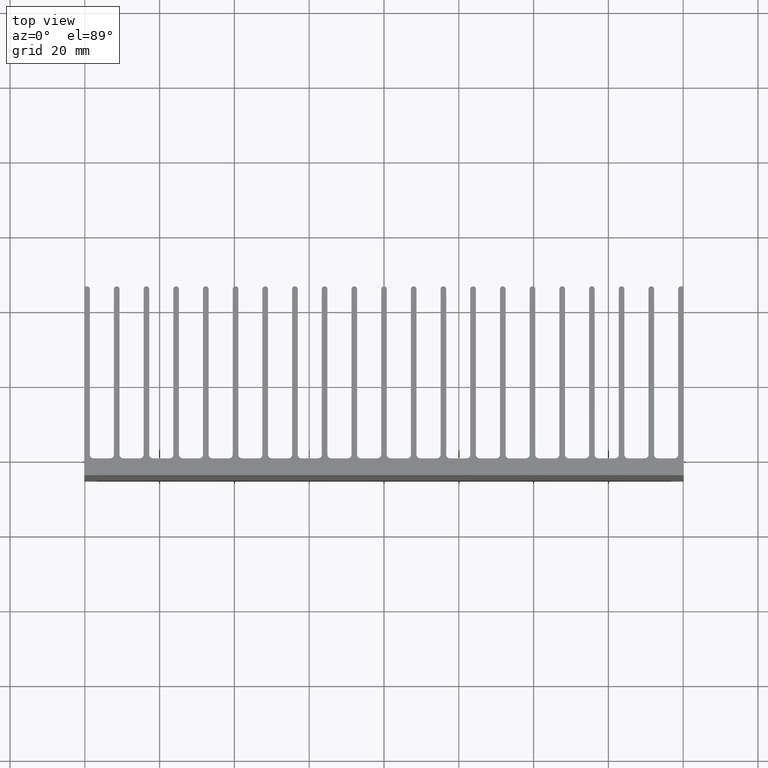
[diagram: clean part render]
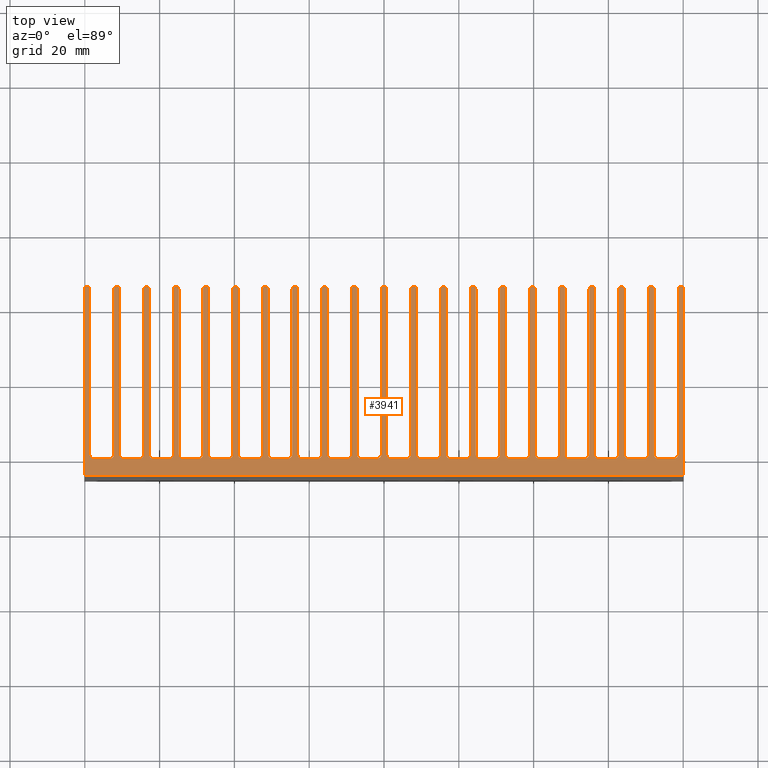
[diagram: same view with one face highlighted and labeled with its STEP entity id]
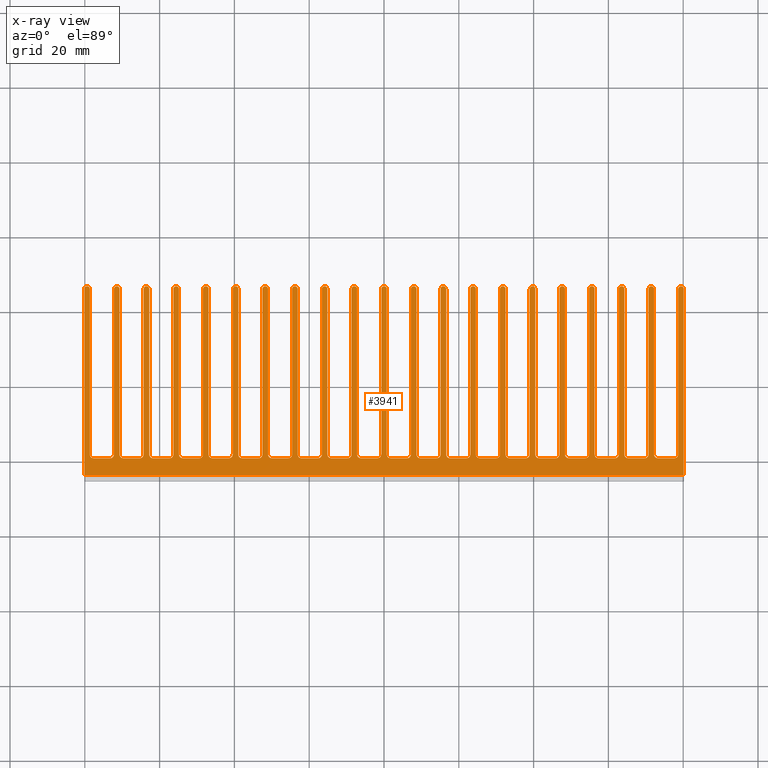
[diagram: x-ray of the same camera — body ghosted, the highlighted face saturated]
A machine part, top view. The second image highlights one B-rep face of the part: STEP entity #3941.
The next image is the same camera in x-ray: the body ghosted, the highlighted face saturated — about 0% of this face is hidden behind the body in this view.
In plain terms, the highlighted planar face has unit normal (0, 0, 1).
Its self-contained STEP definition (entity closure, byte-faithful):
#3 = DIRECTION ( 'NONE',  ( 1.000000000000000000, 0.0000000000000000000, 0.0000000000000000000 ) ) ;
#4 = EDGE_CURVE ( 'NONE', #1098, #3138, #2608, .T. ) ;
#6 = DIRECTION ( 'NONE',  ( -0.0000000000000000000, -0.0000000000000000000, -1.000000000000000000 ) ) ;
#11 = CARTESIAN_POINT ( 'NONE',  ( -17.63000000000135259, -19.74999999999972644, 50.00000000000000000 ) ) ;
#17 = DIRECTION ( 'NONE',  ( -1.000000000000000000, -2.500502307714543940E-14, 0.0000000000000000000 ) ) ;
#22 = CARTESIAN_POINT ( 'NONE',  ( -73.21000000000081798, -20.75000000000040856, 50.00000000000000000 ) ) ;
#24 = VERTEX_POINT ( 'NONE', #272 ) ;
#28 = CARTESIAN_POINT ( 'NONE',  ( 38.95000000000005258, 24.49999999999925748, 50.00000000000000000 ) ) ;
#32 = EDGE_CURVE ( 'NONE', #51, #1141, #4080, .T. ) ;
#38 = CARTESIAN_POINT ( 'NONE',  ( 24.57000000000034845, -19.75000000000029488, 50.00000000000000000 ) ) ;
#42 = AXIS2_PLACEMENT_3D ( 'NONE', #2819, #477, #2506 ) ;
#45 = AXIS2_PLACEMENT_3D ( 'NONE', #1797, #1786, #1784 ) ;
#48 = EDGE_CURVE ( 'NONE', #4087, #1689, #3038, .T. ) ;
#51 = VERTEX_POINT ( 'NONE', #221 ) ;
#52 = EDGE_CURVE ( 'NONE', #284, #3351, #133, .T. ) ;
#70 = VERTEX_POINT ( 'NONE', #175 ) ;
#71 = CARTESIAN_POINT ( 'NONE',  ( 70.70999999999972374, -19.75000000000029488, 50.00000000000000000 ) ) ;
#89 = CARTESIAN_POINT ( 'NONE',  ( 49.39000000000024215, -20.75000000000051870, 50.00000000000000000 ) ) ;
#92 = EDGE_CURVE ( 'NONE', #3453, #24, #3241, .T. ) ;
#94 = ORIENTED_EDGE ( 'NONE', *, *, #261, .T. ) ;
#97 = VERTEX_POINT ( 'NONE', #89 ) ;
#105 = DIRECTION ( 'NONE',  ( 1.000000000000000000, 0.0000000000000000000, 0.0000000000000000000 ) ) ;
#109 = DIRECTION ( 'NONE',  ( 0.0000000000000000000, 0.0000000000000000000, 1.000000000000000000 ) ) ;
#110 = CARTESIAN_POINT ( 'NONE',  ( -31.76000000000077250, 24.49999999999834088, 50.00000000000000000 ) ) ;
#113 = CARTESIAN_POINT ( 'NONE',  ( 15.12999999999978229, -19.75000000000029488, 50.00000000000000000 ) ) ;
#117 = AXIS2_PLACEMENT_3D ( 'NONE', #110, #109, #105 ) ;
#122 = CARTESIAN_POINT ( 'NONE',  ( 14.12999999999956025, -20.75000000000073896, 50.00000000000000000 ) ) ;
#129 = DIRECTION ( 'NONE',  ( -0.0000000000000000000, -0.0000000000000000000, -1.000000000000000000 ) ) ;
#131 = CARTESIAN_POINT ( 'NONE',  ( -78.64999999999956515, -19.75000000000029488, 50.00000000000000000 ) ) ;
#133 = CIRCLE ( 'NONE', #2857, 0.7500000000006806777 ) ;
#140 = LINE ( 'NONE', #3441, #3832 ) ;
#142 = CARTESIAN_POINT ( 'NONE',  ( -53.83000000000003382, -19.75000000000154543, 50.00000000000000000 ) ) ;
#144 = CIRCLE ( 'NONE', #583, 0.7500000000009027223 ) ;
#146 = EDGE_CURVE ( 'NONE', #526, #2121, #3821, .T. ) ;
#150 = EDGE_CURVE ( 'NONE', #1632, #2556, #1026, .T. ) ;
#156 = VERTEX_POINT ( 'NONE', #430 ) ;
#163 = EDGE_CURVE ( 'NONE', #2424, #3272, #3030, .T. ) ;
#165 = CIRCLE ( 'NONE', #1922, 1.000000000000916822 ) ;
#166 = DIRECTION ( 'NONE',  ( 1.000000000000000000, 0.0000000000000000000, 0.0000000000000000000 ) ) ;
#167 = VECTOR ( 'NONE', #3565, 1000.000000000000000 ) ;
#168 = DIRECTION ( 'NONE',  ( 0.0000000000000000000, 0.0000000000000000000, 1.000000000000000000 ) ) ;
#169 = CARTESIAN_POINT ( 'NONE',  ( 47.63999999999862922, 24.49999999999834088, 50.00000000000000000 ) ) ;
#170 = CARTESIAN_POINT ( 'NONE',  ( -9.689999999999921343, -20.75000000000040856, 50.00000000000000000 ) ) ;
#175 = CARTESIAN_POINT ( 'NONE',  ( 78.65000000000065938, -19.75000000000029488, 50.00000000000000000 ) ) ;
#180 = CARTESIAN_POINT ( 'NONE',  ( 31.00999999999920576, 24.49999999999925748, 50.00000000000000000 ) ) ;
#182 = AXIS2_PLACEMENT_3D ( 'NONE', #2872, #2861, #2883 ) ;
#184 = VERTEX_POINT ( 'NONE', #980 ) ;
#186 = VERTEX_POINT ( 'NONE', #463 ) ;
#189 = EDGE_CURVE ( 'NONE', #1311, #1749, #962, .T. ) ;
#193 = VERTEX_POINT ( 'NONE', #971 ) ;
#194 = AXIS2_PLACEMENT_3D ( 'NONE', #1014, #1013, #1010 ) ;
#195 = DIRECTION ( 'NONE',  ( 1.000000000000000000, 0.0000000000000000000, 0.0000000000000000000 ) ) ;
#198 = VERTEX_POINT ( 'NONE', #950 ) ;
#200 = EDGE_CURVE ( 'NONE', #3788, #1043, #3762, .T. ) ;
#202 = CARTESIAN_POINT ( 'NONE',  ( -38.95000000000054996, -19.75000000000029488, 50.00000000000000000 ) ) ;
#203 = VERTEX_POINT ( 'NONE', #943 ) ;
#208 = DIRECTION ( 'NONE',  ( 0.0000000000000000000, 0.0000000000000000000, 1.000000000000000000 ) ) ;
#209 = CARTESIAN_POINT ( 'NONE',  ( 63.52000000000010260, 24.50000000000028422, 50.00000000000000000 ) ) ;
#221 = CARTESIAN_POINT ( 'NONE',  ( -49.39000000000019952, -20.75000000000040856, 50.00000000000000000 ) ) ;
#223 = CARTESIAN_POINT ( 'NONE',  ( -25.56999999999957751, -20.75000000000040856, 50.00000000000000000 ) ) ;
#224 = CIRCLE ( 'NONE', #2585, 1.000000000000854428 ) ;
#232 = CIRCLE ( 'NONE', #3522, 1.000000000000916822 ) ;
#236 = CARTESIAN_POINT ( 'NONE',  ( -7.189999999999918678, 24.49999999999925748, 50.00000000000000000 ) ) ;
#237 = VERTEX_POINT ( 'NONE', #879 ) ;
#253 = EDGE_CURVE ( 'NONE', #3057, #1583, #2401, .T. ) ;
#257 = VERTEX_POINT ( 'NONE', #808 ) ;
#258 = CARTESIAN_POINT ( 'NONE',  ( -61.76999999999871704, -19.74999999999960210, 50.00000000000000000 ) ) ;
#261 = EDGE_CURVE ( 'NONE', #3252, #3601, #144, .T. ) ;
#264 = CARTESIAN_POINT ( 'NONE',  ( -49.39000000000019952, -20.75000000000040856, 50.00000000000000000 ) ) ;
#265 = DIRECTION ( 'NONE',  ( -0.0000000000000000000, -0.0000000000000000000, -1.000000000000000000 ) ) ;
#266 = CARTESIAN_POINT ( 'NONE',  ( -30.00999999999873324, -19.74999999999972644, 50.00000000000000000 ) ) ;
#267 = DIRECTION ( 'NONE',  ( 1.000000000000000000, 0.0000000000000000000, 0.0000000000000000000 ) ) ;
#268 = EDGE_CURVE ( 'NONE', #2003, #1852, #1410, .T. ) ;
#270 = DIRECTION ( 'NONE',  ( -0.0000000000000000000, -0.0000000000000000000, -1.000000000000000000 ) ) ;
#272 = CARTESIAN_POINT ( 'NONE',  ( -32.51000000000009749, 24.49999999999925748, 50.00000000000000000 ) ) ;
#275 = DIRECTION ( 'NONE',  ( -1.000000000000000000, -2.500502307714535736E-14, 0.0000000000000000000 ) ) ;
#277 = CARTESIAN_POINT ( 'NONE',  ( -62.76999999999963364, -19.75000000000029488, 50.00000000000000000 ) ) ;
#279 = EDGE_CURVE ( 'NONE', #1800, #1098, #3342, .T. ) ;
#284 = VERTEX_POINT ( 'NONE', #707 ) ;
#285 = EDGE_CURVE ( 'NONE', #858, #457, #4076, .T. ) ;
#286 = VECTOR ( 'NONE', #3054, 1000.000000000000000 ) ;
#289 = DIRECTION ( 'NONE',  ( 1.000000000000000000, 0.0000000000000000000, 0.0000000000000000000 ) ) ;
#290 = EDGE_CURVE ( 'NONE', #4179, #2262, #2654, .T. ) ;
#293 = VERTEX_POINT ( 'NONE', #713 ) ;
#298 = AXIS2_PLACEMENT_3D ( 'NONE', #357, #2702, #682 ) ;
#315 = CARTESIAN_POINT ( 'NONE',  ( -15.87999999999929734, 24.50000000000015987, 50.00000000000000000 ) ) ;
#326 = DIRECTION ( 'NONE',  ( 1.000000000000000000, 0.0000000000000000000, 0.0000000000000000000 ) ) ;
#329 = CARTESIAN_POINT ( 'NONE',  ( 64.26999999999988233, -19.75000000000029488, 50.00000000000000000 ) ) ;
#330 = CIRCLE ( 'NONE', #2153, 0.9999999999989184207 ) ;
#334 = DIRECTION ( 'NONE',  ( -0.0000000000000000000, -0.0000000000000000000, -1.000000000000000000 ) ) ;
#341 = DIRECTION ( 'NONE',  ( -0.0000000000000000000, -0.0000000000000000000, -1.000000000000000000 ) ) ;
#342 = CIRCLE ( 'NONE', #3299, 1.000000000000902833 ) ;
#346 = CARTESIAN_POINT ( 'NONE',  ( -65.27000000000030866, -19.74999999999972644, 50.00000000000000000 ) ) ;
#357 = CARTESIAN_POINT ( 'NONE',  ( -25.56999999999935724, -19.75000000000154543, 50.00000000000000000 ) ) ;
#359 = CARTESIAN_POINT ( 'NONE',  ( -45.88999999999906976, -19.74999999999960210, 50.00000000000000000 ) ) ;
#361 = EDGE_CURVE ( 'NONE', #3319, #3235, #4150, .T. ) ;
#365 = EDGE_CURVE ( 'NONE', #2771, #2003, #4296, .T. ) ;
#368 = EDGE_CURVE ( 'NONE', #3404, #2355, #4249, .T. ) ;
#376 = EDGE_CURVE ( 'NONE', #2146, #2359, #3975, .T. ) ;
#380 = CARTESIAN_POINT ( 'NONE',  ( 70.70999999999925478, 24.49999999999925748, 50.00000000000000000 ) ) ;
#384 = VECTOR ( 'NONE', #3396, 1000.000000000000000 ) ;
#385 = EDGE_CURVE ( 'NONE', #2311, #574, #4052, .T. ) ;
#386 = LINE ( 'NONE', #1078, #286 ) ;
#389 = DIRECTION ( 'NONE',  ( -0.0000000000000000000, -0.0000000000000000000, -1.000000000000000000 ) ) ;
#390 = CIRCLE ( 'NONE', #3077, 1.000000000000916822 ) ;
#392 = EDGE_CURVE ( 'NONE', #916, #70, #4051, .T. ) ;
#401 = LINE ( 'NONE', #1995, #1655 ) ;
#409 = VERTEX_POINT ( 'NONE', #1492 ) ;
#414 = AXIS2_PLACEMENT_3D ( 'NONE', #3655, #3336, #917 ) ;
#418 = DIRECTION ( 'NONE',  ( 1.000000000000000000, 0.0000000000000000000, 0.0000000000000000000 ) ) ;
#422 = AXIS2_PLACEMENT_3D ( 'NONE', #2185, #2122, #1079 ) ;
#424 = EDGE_CURVE ( 'NONE', #820, #1942, #3859, .T. ) ;
#425 = CIRCLE ( 'NONE', #3109, 0.7500000000009166001 ) ;
#430 = CARTESIAN_POINT ( 'NONE',  ( 16.63000000000069889, 24.49999999999925748, 50.00000000000000000 ) ) ;
#432 = LINE ( 'NONE', #3936, #167 ) ;
#434 = CIRCLE ( 'NONE', #2859, 1.000000000000909939 ) ;
#438 = EDGE_CURVE ( 'NONE', #1469, #3828, #3635, .T. ) ;
#446 = CIRCLE ( 'NONE', #298, 0.9999999999988629096 ) ;
#453 = VERTEX_POINT ( 'NONE', #1421 ) ;
#457 = VERTEX_POINT ( 'NONE', #1444 ) ;
#460 = CARTESIAN_POINT ( 'NONE',  ( 38.94999999999904361, 24.49999999999925748, 50.00000000000000000 ) ) ;
#463 = CARTESIAN_POINT ( 'NONE',  ( 38.94999999999926388, -19.75000000000029488, 50.00000000000000000 ) ) ;
#465 = AXIS2_PLACEMENT_3D ( 'NONE', #3112, #788, #2792 ) ;
#466 = EDGE_CURVE ( 'NONE', #2805, #3252, #3482, .T. ) ;
#468 = CIRCLE ( 'NONE', #45, 1.000000000001138867 ) ;
#470 = CIRCLE ( 'NONE', #1229, 1.000000000000687894 ) ;
#476 = LINE ( 'NONE', #1642, #384 ) ;
#477 = DIRECTION ( 'NONE',  ( -0.0000000000000000000, -0.0000000000000000000, -1.000000000000000000 ) ) ;
#491 = DIRECTION ( 'NONE',  ( -1.000000000000000000, 5.001004615429087881E-14, 0.0000000000000000000 ) ) ;
#505 = CARTESIAN_POINT ( 'NONE',  ( -57.33000000000003382, -20.75000000000073896, 50.00000000000000000 ) ) ;
#511 = CIRCLE ( 'NONE', #898, 0.7500000000010831336 ) ;
#513 = LINE ( 'NONE', #1874, #2327 ) ;
#517 = CARTESIAN_POINT ( 'NONE',  ( 65.26999999999988233, -20.75000000000051870, 50.00000000000000000 ) ) ;
#520 = VECTOR ( 'NONE', #2438, 1000.000000000000000 ) ;
#522 = DIRECTION ( 'NONE',  ( 1.000000000000000000, 0.0000000000000000000, 0.0000000000000000000 ) ) ;
#525 = CIRCLE ( 'NONE', #2450, 0.7500000000006251666 ) ;
#526 = VERTEX_POINT ( 'NONE', #1181 ) ;
#530 = AXIS2_PLACEMENT_3D ( 'NONE', #4151, #3002, #1629 ) ;
#535 = VERTEX_POINT ( 'NONE', #1203 ) ;
#559 = VECTOR ( 'NONE', #1936, 1000.000000000000000 ) ;
#563 = CARTESIAN_POINT ( 'NONE',  ( 62.76999999999988233, -19.75000000000029488, 50.00000000000000000 ) ) ;
#574 = VERTEX_POINT ( 'NONE', #1114 ) ;
#579 = ORIENTED_EDGE ( 'NONE', *, *, #2172, .T. ) ;
#583 = AXIS2_PLACEMENT_3D ( 'NONE', #741, #734, #730 ) ;
#603 = VERTEX_POINT ( 'NONE', #3402 ) ;
#614 = DIRECTION ( 'NONE',  ( 5.331579496787528679E-15, 1.000000000000000000, 0.0000000000000000000 ) ) ;
#615 = CIRCLE ( 'NONE', #1135, 0.7499999999995496935 ) ;
#616 = DIRECTION ( 'NONE',  ( 1.000000000000000000, 0.0000000000000000000, 0.0000000000000000000 ) ) ;
#620 = DIRECTION ( 'NONE',  ( -0.0000000000000000000, -0.0000000000000000000, -1.000000000000000000 ) ) ;
#621 = CARTESIAN_POINT ( 'NONE',  ( -9.690000000000392077, -19.74999999999972644, 50.00000000000000000 ) ) ;
#636 = CARTESIAN_POINT ( 'NONE',  ( -31.00999999999941181, 24.49999999999925748, 50.00000000000000000 ) ) ;
#637 = ORIENTED_EDGE ( 'NONE', *, *, #285, .T. ) ;
#640 = DIRECTION ( 'NONE',  ( 1.000000000000000000, 0.0000000000000000000, 0.0000000000000000000 ) ) ;
#645 = DIRECTION ( 'NONE',  ( 0.0000000000000000000, 0.0000000000000000000, 1.000000000000000000 ) ) ;
#651 = VERTEX_POINT ( 'NONE', #3808 ) ;
#652 = CARTESIAN_POINT ( 'NONE',  ( 31.76000000000078671, 24.50000000000028422, 50.00000000000000000 ) ) ;
#662 = EDGE_CURVE ( 'NONE', #70, #1535, #2274, .T. ) ;
#663 = VERTEX_POINT ( 'NONE', #3827 ) ;
#675 = EDGE_CURVE ( 'NONE', #1535, #4282, #2219, .T. ) ;
#679 = AXIS2_PLACEMENT_3D ( 'NONE', #1969, #1966, #1961 ) ;
#682 = DIRECTION ( 'NONE',  ( 1.000000000000000000, 0.0000000000000000000, 0.0000000000000000000 ) ) ;
#683 = DIRECTION ( 'NONE',  ( 1.000000000000000000, 0.0000000000000000000, 0.0000000000000000000 ) ) ;
#684 = LINE ( 'NONE', #2746, #520 ) ;
#690 = VECTOR ( 'NONE', #1325, 1000.000000000000000 ) ;
#693 = EDGE_CURVE ( 'NONE', #2960, #1184, #2180, .T. ) ;
#699 = EDGE_CURVE ( 'NONE', #651, #1186, #2085, .T. ) ;
#701 = CARTESIAN_POINT ( 'NONE',  ( -64.26999999999962654, 24.49999999999925748, 50.00000000000000000 ) ) ;
#702 = ORIENTED_EDGE ( 'NONE', *, *, #1625, .T. ) ;
#705 = EDGE_CURVE ( 'NONE', #3138, #3268, #1968, .T. ) ;
#707 = CARTESIAN_POINT ( 'NONE',  ( 48.38999999999998636, 24.49999999999925748, 50.00000000000000000 ) ) ;
#713 = CARTESIAN_POINT ( 'NONE',  ( -33.50999999999941537, -20.75000000000073896, 50.00000000000000000 ) ) ;
#728 = EDGE_CURVE ( 'NONE', #993, #4144, #1758, .T. ) ;
#729 = LINE ( 'NONE', #1959, #559 ) ;
#730 = DIRECTION ( 'NONE',  ( 1.000000000000000000, 0.0000000000000000000, 0.0000000000000000000 ) ) ;
#731 = DIRECTION ( 'NONE',  ( 0.0000000000000000000, 0.0000000000000000000, 1.000000000000000000 ) ) ;
#734 = DIRECTION ( 'NONE',  ( 0.0000000000000000000, 0.0000000000000000000, 1.000000000000000000 ) ) ;
#740 = CIRCLE ( 'NONE', #1920, 0.7499999999999451550 ) ;
#741 = CARTESIAN_POINT ( 'NONE',  ( 71.45999999999924057, 24.49999999999834088, 50.00000000000000000 ) ) ;
#742 = CARTESIAN_POINT ( 'NONE',  ( 24.57000000000028450, -19.75000000000029488, 50.00000000000000000 ) ) ;
#749 = DIRECTION ( 'NONE',  ( 0.0000000000000000000, -1.000000000000000000, 0.0000000000000000000 ) ) ;
#752 = CARTESIAN_POINT ( 'NONE',  ( 0.7500000000009721113, -19.75000000000029488, 50.00000000000000000 ) ) ;
#758 = ORIENTED_EDGE ( 'NONE', *, *, #1446, .T. ) ;
#761 = ORIENTED_EDGE ( 'NONE', *, *, #52, .T. ) ;
#771 = VERTEX_POINT ( 'NONE', #2263 ) ;
#773 = DIRECTION ( 'NONE',  ( 1.000000000000000000, 0.0000000000000000000, 0.0000000000000000000 ) ) ;
#776 = ORIENTED_EDGE ( 'NONE', *, *, #2169, .T. ) ;
#777 = CARTESIAN_POINT ( 'NONE',  ( -30.00999999999919154, -20.75000000000051870, 50.00000000000000000 ) ) ;
#778 = DIRECTION ( 'NONE',  ( 0.0000000000000000000, 0.0000000000000000000, 1.000000000000000000 ) ) ;
#781 = CARTESIAN_POINT ( 'NONE',  ( -62.76999999999985391, 24.49999999999925748, 50.00000000000000000 ) ) ;
#782 = CIRCLE ( 'NONE', #679, 1.000000000001138867 ) ;
#783 = CARTESIAN_POINT ( 'NONE',  ( -55.58000000000025409, 24.49999999999834088, 50.00000000000000000 ) ) ;
#786 = DIRECTION ( 'NONE',  ( 0.0000000000000000000, 0.0000000000000000000, 1.000000000000000000 ) ) ;
#788 = DIRECTION ( 'NONE',  ( 0.0000000000000000000, 0.0000000000000000000, 1.000000000000000000 ) ) ;
#793 = LINE ( 'NONE', #2830, #690 ) ;
#800 = EDGE_CURVE ( 'NONE', #1950, #4087, #1438, .T. ) ;
#808 = CARTESIAN_POINT ( 'NONE',  ( 80.15000000000044622, -25.24999999999983658, 50.00000000000000000 ) ) ;
#812 = ORIENTED_EDGE ( 'NONE', *, *, #3547, .T. ) ;
#813 = EDGE_CURVE ( 'NONE', #3165, #4179, #1488, .T. ) ;
#820 = VERTEX_POINT ( 'NONE', #2795 ) ;
#823 = ORIENTED_EDGE ( 'NONE', *, *, #2842, .T. ) ;
#826 = CARTESIAN_POINT ( 'NONE',  ( -62.76999999999963364, -19.75000000000029488, 50.00000000000000000 ) ) ;
#829 = ORIENTED_EDGE ( 'NONE', *, *, #1027, .T. ) ;
#832 = DIRECTION ( 'NONE',  ( 1.000000000000000000, 0.0000000000000000000, 0.0000000000000000000 ) ) ;
#835 = VECTOR ( 'NONE', #2026, 1000.000000000000000 ) ;
#836 = DIRECTION ( 'NONE',  ( 5.017957173447086001E-15, 1.000000000000000000, 0.0000000000000000000 ) ) ;
#842 = CIRCLE ( 'NONE', #2224, 0.7499999999995426991 ) ;
#843 = ORIENTED_EDGE ( 'NONE', *, *, #1985, .T. ) ;
#846 = CIRCLE ( 'NONE', #2073, 0.9999999999989184207 ) ;
#849 = ORIENTED_EDGE ( 'NONE', *, *, #466, .T. ) ;
#852 = EDGE_CURVE ( 'NONE', #409, #2115, #1327, .T. ) ;
#853 = CARTESIAN_POINT ( 'NONE',  ( 72.21000000000084640, -19.75000000000029488, 50.00000000000000000 ) ) ;
#855 = AXIS2_PLACEMENT_3D ( 'NONE', #3988, #3196, #3157 ) ;
#856 = ORIENTED_EDGE ( 'NONE', *, *, #1869, .T. ) ;
#858 = VERTEX_POINT ( 'NONE', #2807 ) ;
#860 = VERTEX_POINT ( 'NONE', #2620 ) ;
#861 = ORIENTED_EDGE ( 'NONE', *, *, #2974, .T. ) ;
#864 = ORIENTED_EDGE ( 'NONE', *, *, #3188, .T. ) ;
#868 = VERTEX_POINT ( 'NONE', #563 ) ;
#869 = VERTEX_POINT ( 'NONE', #889 ) ;
#870 = CARTESIAN_POINT ( 'NONE',  ( -16.63000000000043599, 24.49999999999925748, 50.00000000000000000 ) ) ;
#875 = ORIENTED_EDGE ( 'NONE', *, *, #2769, .T. ) ;
#876 = DIRECTION ( 'NONE',  ( 1.000000000000000000, 0.0000000000000000000, 0.0000000000000000000 ) ) ;
#878 = ORIENTED_EDGE ( 'NONE', *, *, #1633, .T. ) ;
#879 = CARTESIAN_POINT ( 'NONE',  ( 23.06999999999982265, 24.49999999999925748, 50.00000000000000000 ) ) ;
#880 = EDGE_CURVE ( 'NONE', #2788, #535, #1267, .T. ) ;
#885 = EDGE_CURVE ( 'NONE', #3190, #1895, #1166, .T. ) ;
#889 = CARTESIAN_POINT ( 'NONE',  ( 53.82999999999982066, -20.75000000000073896, 50.00000000000000000 ) ) ;
#898 = AXIS2_PLACEMENT_3D ( 'NONE', #1845, #1840, #1839 ) ;
#900 = CARTESIAN_POINT ( 'NONE',  ( -6.189999999999695746, -20.75000000000051870, 50.00000000000000000 ) ) ;
#903 = PLANE ( 'NONE',  #4252 ) ;
#905 = ORIENTED_EDGE ( 'NONE', *, *, #3385, .T. ) ;
#910 = LINE ( 'NONE', #460, #3301 ) ;
#914 = ORIENTED_EDGE ( 'NONE', *, *, #2781, .T. ) ;
#916 = VERTEX_POINT ( 'NONE', #2100 ) ;
#917 = DIRECTION ( 'NONE',  ( 1.000000000000000000, 0.0000000000000000000, 0.0000000000000000000 ) ) ;
#918 = ORIENTED_EDGE ( 'NONE', *, *, #2538, .T. ) ;
#923 = ORIENTED_EDGE ( 'NONE', *, *, #2587, .T. ) ;
#924 = EDGE_CURVE ( 'NONE', #771, #1632, #1064, .T. ) ;
#933 = ORIENTED_EDGE ( 'NONE', *, *, #365, .T. ) ;
#934 = EDGE_CURVE ( 'NONE', #3362, #2788, #941, .T. ) ;
#935 = ORIENTED_EDGE ( 'NONE', *, *, #268, .T. ) ;
#936 = DIRECTION ( 'NONE',  ( 5.017957173447086001E-15, -1.000000000000000000, 0.0000000000000000000 ) ) ;
#938 = DIRECTION ( 'NONE',  ( -0.0000000000000000000, -0.0000000000000000000, -1.000000000000000000 ) ) ;
#940 = CARTESIAN_POINT ( 'NONE',  ( -63.52000000000122526, 24.49999999999834088, 50.00000000000000000 ) ) ;
#941 = LINE ( 'NONE', #2027, #835 ) ;
#943 = CARTESIAN_POINT ( 'NONE',  ( 80.15000000000044622, 24.49999999999925748, 50.00000000000000000 ) ) ;
#949 = EDGE_CURVE ( 'NONE', #193, #1131, #782, .T. ) ;
#950 = CARTESIAN_POINT ( 'NONE',  ( 7.189999999999946212, -19.75000000000029488, 50.00000000000000000 ) ) ;
#951 = CARTESIAN_POINT ( 'NONE',  ( -48.39000000000133639, 24.49999999999925748, 50.00000000000000000 ) ) ;
#958 = DIRECTION ( 'NONE',  ( -1.000000000000000000, 5.001004615429102396E-14, 0.0000000000000000000 ) ) ;
#962 = LINE ( 'NONE', #977, #1781 ) ;
#969 = VERTEX_POINT ( 'NONE', #1947 ) ;
#971 = CARTESIAN_POINT ( 'NONE',  ( -0.7499999999998618883, -19.75000000000029488, 50.00000000000000000 ) ) ;
#977 = CARTESIAN_POINT ( 'NONE',  ( 69.70999999999946795, -20.75000000000073896, 50.00000000000000000 ) ) ;
#978 = EDGE_CURVE ( 'NONE', #1992, #3041, #729, .T. ) ;
#979 = VECTOR ( 'NONE', #1643, 1000.000000000000000 ) ;
#980 = CARTESIAN_POINT ( 'NONE',  ( 46.89000000000023505, -19.75000000000029488, 50.00000000000000000 ) ) ;
#992 = EDGE_CURVE ( 'NONE', #1637, #3560, #615, .T. ) ;
#993 = VERTEX_POINT ( 'NONE', #1904 ) ;
#996 = DIRECTION ( 'NONE',  ( 1.000000000000000000, 0.0000000000000000000, 0.0000000000000000000 ) ) ;
#998 = ORIENTED_EDGE ( 'NONE', *, *, #2862, .T. ) ;
#1002 = DIRECTION ( 'NONE',  ( -0.0000000000000000000, -0.0000000000000000000, -1.000000000000000000 ) ) ;
#1004 = EDGE_CURVE ( 'NONE', #203, #916, #511, .T. ) ;
#1007 = CARTESIAN_POINT ( 'NONE',  ( -37.94999999999969020, -19.74999999999972644, 50.00000000000000000 ) ) ;
#1010 = DIRECTION ( 'NONE',  ( 1.000000000000000000, 0.0000000000000000000, 0.0000000000000000000 ) ) ;
#1013 = DIRECTION ( 'NONE',  ( -0.0000000000000000000, -0.0000000000000000000, -1.000000000000000000 ) ) ;
#1014 = CARTESIAN_POINT ( 'NONE',  ( 25.57000000000120110, -19.74999999999972644, 50.00000000000000000 ) ) ;
#1024 = DIRECTION ( 'NONE',  ( 5.017957173447086001E-15, 1.000000000000000000, 0.0000000000000000000 ) ) ;
#1026 = LINE ( 'NONE', #22, #2238 ) ;
#1027 = EDGE_CURVE ( 'NONE', #186, #3425, #470, .T. ) ;
#1030 = DIRECTION ( 'NONE',  ( -1.000000000000000000, 5.001004615427806140E-14, 0.0000000000000000000 ) ) ;
#1032 = ORIENTED_EDGE ( 'NONE', *, *, #2228, .T. ) ;
#1033 = DIRECTION ( 'NONE',  ( -0.0000000000000000000, -0.0000000000000000000, -1.000000000000000000 ) ) ;
#1037 = DIRECTION ( 'NONE',  ( 1.000000000000000000, 0.0000000000000000000, 0.0000000000000000000 ) ) ;
#1038 = ORIENTED_EDGE ( 'NONE', *, *, #852, .T. ) ;
#1039 = CARTESIAN_POINT ( 'NONE',  ( -8.689999999999697522, -19.75000000000029488, 50.00000000000000000 ) ) ;
#1040 = EDGE_CURVE ( 'NONE', #3902, #1311, #468, .T. ) ;
#1043 = VERTEX_POINT ( 'NONE', #1901 ) ;
#1044 = ORIENTED_EDGE ( 'NONE', *, *, #4075, .T. ) ;
#1049 = ORIENTED_EDGE ( 'NONE', *, *, #2890, .T. ) ;
#1051 = CARTESIAN_POINT ( 'NONE',  ( 78.65000000000065938, 24.49999999999925748, 50.00000000000000000 ) ) ;
#1055 = VERTEX_POINT ( 'NONE', #1754 ) ;
#1058 = ORIENTED_EDGE ( 'NONE', *, *, #3518, .T. ) ;
#1064 = CIRCLE ( 'NONE', #3894, 1.000000000000680789 ) ;
#1078 = CARTESIAN_POINT ( 'NONE',  ( 61.76999999999965496, -20.75000000000040856, 50.00000000000000000 ) ) ;
#1079 = DIRECTION ( 'NONE',  ( 1.000000000000000000, 0.0000000000000000000, 0.0000000000000000000 ) ) ;
#1082 = ORIENTED_EDGE ( 'NONE', *, *, #3977, .T. ) ;
#1095 = EDGE_CURVE ( 'NONE', #2352, #3545, #165, .T. ) ;
#1097 = ORIENTED_EDGE ( 'NONE', *, *, #3920, .T. ) ;
#1098 = VERTEX_POINT ( 'NONE', #1865 ) ;
#1104 = ORIENTED_EDGE ( 'NONE', *, *, #2775, .T. ) ;
#1105 = ORIENTED_EDGE ( 'NONE', *, *, #1159, .T. ) ;
#1106 = ORIENTED_EDGE ( 'NONE', *, *, #662, .T. ) ;
#1113 = VECTOR ( 'NONE', #2806, 1000.000000000000000 ) ;
#1114 = CARTESIAN_POINT ( 'NONE',  ( -70.70999999999969532, 24.49999999999925748, 50.00000000000000000 ) ) ;
#1121 = CIRCLE ( 'NONE', #1322, 1.000000000000694778 ) ;
#1130 = ORIENTED_EDGE ( 'NONE', *, *, #3051, .T. ) ;
#1131 = VERTEX_POINT ( 'NONE', #1654 ) ;
#1133 = CARTESIAN_POINT ( 'NONE',  ( 32.51000000000056644, -19.75000000000029488, 50.00000000000000000 ) ) ;
#1135 = AXIS2_PLACEMENT_3D ( 'NONE', #1894, #1887, #1886 ) ;
#1137 = ORIENTED_EDGE ( 'NONE', *, *, #2040, .T. ) ;
#1140 = CARTESIAN_POINT ( 'NONE',  ( -7.189999999999696634, -19.75000000000029488, 50.00000000000000000 ) ) ;
#1141 = VERTEX_POINT ( 'NONE', #2133 ) ;
#1144 = ORIENTED_EDGE ( 'NONE', *, *, #2132, .T. ) ;
#1148 = VERTEX_POINT ( 'NONE', #1651 ) ;
#1152 = EDGE_CURVE ( 'NONE', #1803, #284, #4170, .T. ) ;
#1153 = ORIENTED_EDGE ( 'NONE', *, *, #3650, .T. ) ;
#1154 = ORIENTED_EDGE ( 'NONE', *, *, #1531, .T. ) ;
#1157 = DIRECTION ( 'NONE',  ( 0.0000000000000000000, 0.0000000000000000000, 1.000000000000000000 ) ) ;
#1158 = EDGE_CURVE ( 'NONE', #574, #663, #4063, .T. ) ;
#1159 = EDGE_CURVE ( 'NONE', #3562, #1055, #4211, .T. ) ;
#1166 = LINE ( 'NONE', #826, #1113 ) ;
#1175 = EDGE_CURVE ( 'NONE', #4214, #3362, #3820, .T. ) ;
#1176 = CIRCLE ( 'NONE', #1783, 1.000000000001138867 ) ;
#1178 = CARTESIAN_POINT ( 'NONE',  ( 23.81999999999914763, 24.49999999999834088, 50.00000000000000000 ) ) ;
#1181 = CARTESIAN_POINT ( 'NONE',  ( -16.63000000000067047, -19.75000000000029488, 50.00000000000000000 ) ) ;
#1183 = EDGE_CURVE ( 'NONE', #1043, #51, #4114, .T. ) ;
#1184 = VERTEX_POINT ( 'NONE', #2592 ) ;
#1186 = VERTEX_POINT ( 'NONE', #2564 ) ;
#1188 = LINE ( 'NONE', #2108, #979 ) ;
#1193 = ORIENTED_EDGE ( 'NONE', *, *, #3397, .T. ) ;
#1194 = DIRECTION ( 'NONE',  ( -1.000000000000000000, -2.500502307715176607E-14, 0.0000000000000000000 ) ) ;
#1202 = ORIENTED_EDGE ( 'NONE', *, *, #1558, .T. ) ;
#1203 = CARTESIAN_POINT ( 'NONE',  ( -24.56999999999969475, 24.49999999999925748, 50.00000000000000000 ) ) ;
#1207 = EDGE_CURVE ( 'NONE', #1131, #2352, #3649, .T. ) ;
#1209 = ORIENTED_EDGE ( 'NONE', *, *, #2558, .T. ) ;
#1219 = DIRECTION ( 'NONE',  ( 1.000000000000000000, 0.0000000000000000000, 0.0000000000000000000 ) ) ;
#1220 = CARTESIAN_POINT ( 'NONE',  ( 25.57000000000073214, -20.75000000000051870, 50.00000000000000000 ) ) ;
#1223 = CARTESIAN_POINT ( 'NONE',  ( 17.63000000000183931, -19.74999999999960210, 50.00000000000000000 ) ) ;
#1226 = AXIS2_PLACEMENT_3D ( 'NONE', #1962, #3612, #2718 ) ;
#1229 = AXIS2_PLACEMENT_3D ( 'NONE', #1817, #1812, #1811 ) ;
#1232 = CARTESIAN_POINT ( 'NONE',  ( 15.87999999999931156, 24.49999999999834088, 50.00000000000000000 ) ) ;
#1240 = ORIENTED_EDGE ( 'NONE', *, *, #1590, .T. ) ;
#1246 = ORIENTED_EDGE ( 'NONE', *, *, #368, .T. ) ;
#1248 = VERTEX_POINT ( 'NONE', #2474 ) ;
#1251 = CARTESIAN_POINT ( 'NONE',  ( -0.7500000000003232969, 24.49999999999925748, 50.00000000000000000 ) ) ;
#1256 = ORIENTED_EDGE ( 'NONE', *, *, #2793, .T. ) ;
#1259 = CARTESIAN_POINT ( 'NONE',  ( -33.51000000000031775, -19.74999999999960210, 50.00000000000000000 ) ) ;
#1260 = EDGE_CURVE ( 'NONE', #535, #1148, #3656, .T. ) ;
#1261 = DIRECTION ( 'NONE',  ( 0.0000000000000000000, -1.000000000000000000, 0.0000000000000000000 ) ) ;
#1267 = CIRCLE ( 'NONE', #2072, 0.7499999999995426991 ) ;
#1268 = DIRECTION ( 'NONE',  ( -5.331579496787528679E-15, -1.000000000000000000, 0.0000000000000000000 ) ) ;
#1276 = VECTOR ( 'NONE', #1261, 1000.000000000000000 ) ;
#1281 = CARTESIAN_POINT ( 'NONE',  ( 24.57000000000050832, 24.49999999999925748, 50.00000000000000000 ) ) ;
#1289 = DIRECTION ( 'NONE',  ( -0.0000000000000000000, -0.0000000000000000000, -1.000000000000000000 ) ) ;
#1290 = CARTESIAN_POINT ( 'NONE',  ( 62.76999999999988233, 24.49999999999925748, 50.00000000000000000 ) ) ;
#1297 = LINE ( 'NONE', #2309, #3042 ) ;
#1310 = DIRECTION ( 'NONE',  ( 0.0000000000000000000, -1.000000000000000000, 0.0000000000000000000 ) ) ;
#1311 = VERTEX_POINT ( 'NONE', #2360 ) ;
#1312 = CARTESIAN_POINT ( 'NONE',  ( -56.32999999999979934, -19.75000000000029488, 50.00000000000000000 ) ) ;
#1313 = ORIENTED_EDGE ( 'NONE', *, *, #949, .T. ) ;
#1320 = ORIENTED_EDGE ( 'NONE', *, *, #1207, .T. ) ;
#1322 = AXIS2_PLACEMENT_3D ( 'NONE', #2732, #2743, #2745 ) ;
#1325 = DIRECTION ( 'NONE',  ( 5.645201820127971357E-15, 1.000000000000000000, 0.0000000000000000000 ) ) ;
#1327 = CIRCLE ( 'NONE', #1605, 1.000000000001138867 ) ;
#1330 = AXIS2_PLACEMENT_3D ( 'NONE', #3275, #3281, #3218 ) ;
#1343 = DIRECTION ( 'NONE',  ( -5.645201820127971357E-15, 1.000000000000000000, 0.0000000000000000000 ) ) ;
#1345 = CARTESIAN_POINT ( 'NONE',  ( -15.12999999999975387, 24.49999999999925748, 50.00000000000000000 ) ) ;
#1359 = ORIENTED_EDGE ( 'NONE', *, *, #1095, .T. ) ;
#1364 = ORIENTED_EDGE ( 'NONE', *, *, #2119, .T. ) ;
#1368 = CARTESIAN_POINT ( 'NONE',  ( 72.21000000000086061, -19.75000000000029488, 50.00000000000000000 ) ) ;
#1369 = EDGE_CURVE ( 'NONE', #2764, #3165, #2978, .T. ) ;
#1371 = ORIENTED_EDGE ( 'NONE', *, *, #2376, .T. ) ;
#1375 = EDGE_CURVE ( 'NONE', #4144, #869, #2875, .T. ) ;
#1381 = VECTOR ( 'NONE', #3204, 1000.000000000000000 ) ;
#1401 = LINE ( 'NONE', #1954, #1276 ) ;
#1406 = CARTESIAN_POINT ( 'NONE',  ( 54.83000000000004803, -19.75000000000029488, 50.00000000000000000 ) ) ;
#1410 = LINE ( 'NONE', #742, #2934 ) ;
#1413 = ORIENTED_EDGE ( 'NONE', *, *, #1369, .T. ) ;
#1421 = CARTESIAN_POINT ( 'NONE',  ( 15.12999999999932044, 24.49999999999925748, 50.00000000000000000 ) ) ;
#1426 = ORIENTED_EDGE ( 'NONE', *, *, #813, .T. ) ;
#1430 = ORIENTED_EDGE ( 'NONE', *, *, #290, .T. ) ;
#1434 = EDGE_CURVE ( 'NONE', #1925, #1469, #2740, .T. ) ;
#1435 = DIRECTION ( 'NONE',  ( 5.331579496787528679E-15, 1.000000000000000000, 0.0000000000000000000 ) ) ;
#1438 = LINE ( 'NONE', #2603, #1381 ) ;
#1444 = CARTESIAN_POINT ( 'NONE',  ( 31.01000000000022538, 24.49999999999925748, 50.00000000000000000 ) ) ;
#1446 = EDGE_CURVE ( 'NONE', #969, #3102, #2594, .T. ) ;
#1447 = DIRECTION ( 'NONE',  ( 1.000000000000000000, 0.0000000000000000000, 0.0000000000000000000 ) ) ;
#1452 = AXIS2_PLACEMENT_3D ( 'NONE', #2583, #2571, #2565 ) ;
#1455 = DIRECTION ( 'NONE',  ( -0.0000000000000000000, -0.0000000000000000000, -1.000000000000000000 ) ) ;
#1457 = CARTESIAN_POINT ( 'NONE',  ( 45.88999999999998636, -20.75000000000041567, 50.00000000000000000 ) ) ;
#1459 = CARTESIAN_POINT ( 'NONE',  ( -41.45000000000128892, -19.74999999999960210, 50.00000000000000000 ) ) ;
#1464 = CARTESIAN_POINT ( 'NONE',  ( 55.57999999999960039, 24.49999999999834088, 50.00000000000000000 ) ) ;
#1465 = ORIENTED_EDGE ( 'NONE', *, *, #3702, .T. ) ;
#1469 = VERTEX_POINT ( 'NONE', #3149 ) ;
#1474 = ORIENTED_EDGE ( 'NONE', *, *, #1434, .T. ) ;
#1479 = CARTESIAN_POINT ( 'NONE',  ( -15.12999999999999012, -19.75000000000029488, 50.00000000000000000 ) ) ;
#1484 = ORIENTED_EDGE ( 'NONE', *, *, #438, .T. ) ;
#1487 = ORIENTED_EDGE ( 'NONE', *, *, #2529, .T. ) ;
#1488 = LINE ( 'NONE', #3170, #1539 ) ;
#1492 = CARTESIAN_POINT ( 'NONE',  ( 23.07000000000075701, -19.75000000000029488, 50.00000000000000000 ) ) ;
#1497 = EDGE_CURVE ( 'NONE', #3601, #3902, #2496, .T. ) ;
#1498 = CARTESIAN_POINT ( 'NONE',  ( -78.64999999999950830, 24.49999999999925748, 50.00000000000000000 ) ) ;
#1507 = LINE ( 'NONE', #170, #1775 ) ;
#1520 = ORIENTED_EDGE ( 'NONE', *, *, #2692, .T. ) ;
#1528 = ORIENTED_EDGE ( 'NONE', *, *, #1497, .T. ) ;
#1531 = EDGE_CURVE ( 'NONE', #3616, #198, #2237, .T. ) ;
#1533 = ORIENTED_EDGE ( 'NONE', *, *, #146, .T. ) ;
#1535 = VERTEX_POINT ( 'NONE', #3679 ) ;
#1539 = VECTOR ( 'NONE', #3216, 1000.000000000000000 ) ;
#1542 = DIRECTION ( 'NONE',  ( 0.0000000000000000000, -1.000000000000000000, 0.0000000000000000000 ) ) ;
#1543 = DIRECTION ( 'NONE',  ( 5.017957173447086001E-15, 1.000000000000000000, 0.0000000000000000000 ) ) ;
#1552 = CARTESIAN_POINT ( 'NONE',  ( -0.7499999999998618883, 24.49999999999925748, 50.00000000000000000 ) ) ;
#1555 = DIRECTION ( 'NONE',  ( 0.0000000000000000000, 0.0000000000000000000, 1.000000000000000000 ) ) ;
#1558 = EDGE_CURVE ( 'NONE', #2054, #2067, #2095, .T. ) ;
#1559 = CARTESIAN_POINT ( 'NONE',  ( -70.70999999999990848, -19.75000000000029488, 50.00000000000000000 ) ) ;
#1562 = ORIENTED_EDGE ( 'NONE', *, *, #4104, .T. ) ;
#1568 = DIRECTION ( 'NONE',  ( -5.331579496787528679E-15, 1.000000000000000000, 0.0000000000000000000 ) ) ;
#1573 = DIRECTION ( 'NONE',  ( 1.000000000000000000, 0.0000000000000000000, 0.0000000000000000000 ) ) ;
#1577 = ORIENTED_EDGE ( 'NONE', *, *, #4157, .T. ) ;
#1578 = ORIENTED_EDGE ( 'NONE', *, *, #1175, .T. ) ;
#1579 = CARTESIAN_POINT ( 'NONE',  ( -47.63999999999975188, 24.50000000000028422, 50.00000000000000000 ) ) ;
#1583 = VERTEX_POINT ( 'NONE', #2953 ) ;
#1587 = ORIENTED_EDGE ( 'NONE', *, *, #934, .T. ) ;
#1589 = ORIENTED_EDGE ( 'NONE', *, *, #880, .T. ) ;
#1590 = EDGE_CURVE ( 'NONE', #4288, #3404, #1976, .T. ) ;
#1591 = DIRECTION ( 'NONE',  ( 0.0000000000000000000, 0.0000000000000000000, 1.000000000000000000 ) ) ;
#1594 = ORIENTED_EDGE ( 'NONE', *, *, #1260, .T. ) ;
#1595 = CARTESIAN_POINT ( 'NONE',  ( -3.330669073875469621E-13, 24.49999999999834088, 50.00000000000000000 ) ) ;
#1599 = DIRECTION ( 'NONE',  ( 1.000000000000000000, 0.0000000000000000000, 0.0000000000000000000 ) ) ;
#1600 = EDGE_CURVE ( 'NONE', #3268, #2311, #1833, .T. ) ;
#1601 = DIRECTION ( 'NONE',  ( 0.0000000000000000000, 0.0000000000000000000, 1.000000000000000000 ) ) ;
#1604 = DIRECTION ( 'NONE',  ( 0.0000000000000000000, 0.0000000000000000000, 1.000000000000000000 ) ) ;
#1605 = AXIS2_PLACEMENT_3D ( 'NONE', #2729, #2736, #3027 ) ;
#1607 = CARTESIAN_POINT ( 'NONE',  ( -46.89000000000020663, 24.49999999999925748, 50.00000000000000000 ) ) ;
#1616 = VECTOR ( 'NONE', #2895, 1000.000000000000000 ) ;
#1619 = CARTESIAN_POINT ( 'NONE',  ( -32.50999999999918089, -19.75000000000029488, 50.00000000000000000 ) ) ;
#1622 = CARTESIAN_POINT ( 'NONE',  ( -14.12999999999953182, -20.75000000000051870, 50.00000000000000000 ) ) ;
#1625 = EDGE_CURVE ( 'NONE', #869, #97, #1826, .T. ) ;
#1629 = DIRECTION ( 'NONE',  ( 1.000000000000000000, 0.0000000000000000000, 0.0000000000000000000 ) ) ;
#1632 = VERTEX_POINT ( 'NONE', #2900 ) ;
#1633 = EDGE_CURVE ( 'NONE', #3774, #4235, #1719, .T. ) ;
#1636 = ORIENTED_EDGE ( 'NONE', *, *, #3848, .T. ) ;
#1637 = VERTEX_POINT ( 'NONE', #3972 ) ;
#1640 = ORIENTED_EDGE ( 'NONE', *, *, #978, .T. ) ;
#1642 = CARTESIAN_POINT ( 'NONE',  ( 30.01000000000034262, -20.75000000000040856, 50.00000000000000000 ) ) ;
#1643 = DIRECTION ( 'NONE',  ( -1.000000000000000000, 5.001004615429087881E-14, 0.0000000000000000000 ) ) ;
#1647 = DIRECTION ( 'NONE',  ( 1.000000000000000000, 0.0000000000000000000, 0.0000000000000000000 ) ) ;
#1651 = CARTESIAN_POINT ( 'NONE',  ( -24.57000000000049411, -19.75000000000029488, 50.00000000000000000 ) ) ;
#1652 = CARTESIAN_POINT ( 'NONE',  ( 1.749999999999890532, -19.75000000000154543, 50.00000000000000000 ) ) ;
#1654 = CARTESIAN_POINT ( 'NONE',  ( -1.750000000000112799, -20.75000000000073896, 50.00000000000000000 ) ) ;
#1655 = VECTOR ( 'NONE', #2230, 1000.000000000000000 ) ;
#1657 = DIRECTION ( 'NONE',  ( 1.000000000000000000, 0.0000000000000000000, 0.0000000000000000000 ) ) ;
#1659 = CARTESIAN_POINT ( 'NONE',  ( -8.690000000000443592, 24.49999999999925748, 50.00000000000000000 ) ) ;
#1664 = DIRECTION ( 'NONE',  ( -0.0000000000000000000, -0.0000000000000000000, -1.000000000000000000 ) ) ;
#1674 = ORIENTED_EDGE ( 'NONE', *, *, #3938, .T. ) ;
#1679 = DIRECTION ( 'NONE',  ( 1.000000000000000000, 0.0000000000000000000, 0.0000000000000000000 ) ) ;
#1682 = DIRECTION ( 'NONE',  ( -0.0000000000000000000, -0.0000000000000000000, -1.000000000000000000 ) ) ;
#1683 = ORIENTED_EDGE ( 'NONE', *, *, #4187, .T. ) ;
#1684 = CARTESIAN_POINT ( 'NONE',  ( -6.189999999998780034, -19.74999999999960210, 50.00000000000000000 ) ) ;
#1689 = VERTEX_POINT ( 'NONE', #2825 ) ;
#1708 = DIRECTION ( 'NONE',  ( 1.000000000000000000, 0.0000000000000000000, -0.0000000000000000000 ) ) ;
#1712 = CARTESIAN_POINT ( 'NONE',  ( 7.190000000000286384, 24.49999999999925748, 50.00000000000000000 ) ) ;
#1719 = CIRCLE ( 'NONE', #414, 0.9999999999988629096 ) ;
#1735 = ORIENTED_EDGE ( 'NONE', *, *, #3629, .T. ) ;
#1739 = EDGE_LOOP ( 'NONE', ( #1106, #2246, #1371, #849, #94, #1528, #1861, #2080, #1049, #1828, #3711, #864, #2017, #905, #2465, #1577, #3890, #1854, #4171, #702, #843, #2210, #761, #914, #875, #776, #923, #856, #861, #812, #829, #823, #758, #1743, #637, #579, #878, #918, #933, #935, #998, #1032, #1038, #1044, #1058, #1082, #1097, #1104, #1105, #1130, #1137, #1144, #1153, #1154, #1193, #1202, #1209, #1240, #1246, #1256, #1313, #1320, #1359, #1364, #1413, #1426, #1430, #1465, #1474, #1484, #1487, #1520, #1533, #1562, #1578, #1587, #1589, #1594, #1636, #1640, #1747, #1683, #2909, #1787, #1808, #1735, #2077, #3370, #2814, #3167, #2170, #1944, #4182, #4082, #2303, #2198, #3726, #3409, #2552, #1674, #4012, #2988, #2154, #2798, #1939, #2679, #1813, #3430, #4245, #3114, #3007, #2175, #4293, #3967, #3064, #2962, #3743, #2018, #3526, #2677, #2575, #1957, #1857, #2957 ) ) ;
#1743 = ORIENTED_EDGE ( 'NONE', *, *, #2088, .T. ) ;
#1747 = ORIENTED_EDGE ( 'NONE', *, *, #3203, .T. ) ;
#1749 = VERTEX_POINT ( 'NONE', #517 ) ;
#1752 = VECTOR ( 'NONE', #3240, 1000.000000000000000 ) ;
#1754 = CARTESIAN_POINT ( 'NONE',  ( 14.12999999999956025, -20.75000000000073896, 50.00000000000000000 ) ) ;
#1758 = LINE ( 'NONE', #3078, #1752 ) ;
#1765 = VECTOR ( 'NONE', #1310, 1000.000000000000000 ) ;
#1768 = CARTESIAN_POINT ( 'NONE',  ( -65.26999999999985391, -20.75000000000040856, 50.00000000000000000 ) ) ;
#1775 = VECTOR ( 'NONE', #2196, 1000.000000000000000 ) ;
#1781 = VECTOR ( 'NONE', #958, 1000.000000000000000 ) ;
#1782 = DIRECTION ( 'NONE',  ( 0.0000000000000000000, 1.000000000000000000, 0.0000000000000000000 ) ) ;
#1783 = AXIS2_PLACEMENT_3D ( 'NONE', #1259, #1289, #1219 ) ;
#1784 = DIRECTION ( 'NONE',  ( 1.000000000000000000, 0.0000000000000000000, 0.0000000000000000000 ) ) ;
#1786 = DIRECTION ( 'NONE',  ( -0.0000000000000000000, -0.0000000000000000000, -1.000000000000000000 ) ) ;
#1787 = ORIENTED_EDGE ( 'NONE', *, *, #4042, .T. ) ;
#1791 = LINE ( 'NONE', #3986, #2000 ) ;
#1796 = EDGE_CURVE ( 'NONE', #868, #1248, #1121, .T. ) ;
#1797 = CARTESIAN_POINT ( 'NONE',  ( 69.70999999999857266, -19.74999999999960210, 50.00000000000000000 ) ) ;
#1800 = VERTEX_POINT ( 'NONE', #2751 ) ;
#1803 = VERTEX_POINT ( 'NONE', #3229 ) ;
#1808 = ORIENTED_EDGE ( 'NONE', *, *, #1809, .T. ) ;
#1809 = EDGE_CURVE ( 'NONE', #4285, #293, #1176, .T. ) ;
#1810 = CARTESIAN_POINT ( 'NONE',  ( -54.82999999999889695, 24.49999999999925748, 50.00000000000000000 ) ) ;
#1811 = DIRECTION ( 'NONE',  ( 1.000000000000000000, 0.0000000000000000000, 0.0000000000000000000 ) ) ;
#1812 = DIRECTION ( 'NONE',  ( -0.0000000000000000000, -0.0000000000000000000, -1.000000000000000000 ) ) ;
#1813 = ORIENTED_EDGE ( 'NONE', *, *, #1900, .T. ) ;
#1817 = CARTESIAN_POINT ( 'NONE',  ( 37.94999999999856755, -19.74999999999972644, 50.00000000000000000 ) ) ;
#1824 = CIRCLE ( 'NONE', #1226, 1.000000000000902833 ) ;
#1826 = LINE ( 'NONE', #3893, #1616 ) ;
#1828 = ORIENTED_EDGE ( 'NONE', *, *, #800, .T. ) ;
#1833 = CIRCLE ( 'NONE', #182, 1.000000000000847322 ) ;
#1834 = CIRCLE ( 'NONE', #1849, 1.000000000000847322 ) ;
#1839 = DIRECTION ( 'NONE',  ( 1.000000000000000000, 0.0000000000000000000, 0.0000000000000000000 ) ) ;
#1840 = DIRECTION ( 'NONE',  ( 0.0000000000000000000, 0.0000000000000000000, 1.000000000000000000 ) ) ;
#1845 = CARTESIAN_POINT ( 'NONE',  ( 79.39999999999908198, 24.49999999999834088, 50.00000000000000000 ) ) ;
#1849 = AXIS2_PLACEMENT_3D ( 'NONE', #266, #1033, #4272 ) ;
#1852 = VERTEX_POINT ( 'NONE', #1281 ) ;
#1854 = ORIENTED_EDGE ( 'NONE', *, *, #728, .T. ) ;
#1857 = ORIENTED_EDGE ( 'NONE', *, *, #1004, .T. ) ;
#1861 = ORIENTED_EDGE ( 'NONE', *, *, #1040, .T. ) ;
#1865 = CARTESIAN_POINT ( 'NONE',  ( -64.26999999999962654, -19.75000000000029488, 50.00000000000000000 ) ) ;
#1866 = AXIS2_PLACEMENT_3D ( 'NONE', #2548, #2543, #2542 ) ;
#1868 = EDGE_CURVE ( 'NONE', #2359, #3788, #842, .T. ) ;
#1869 = EDGE_CURVE ( 'NONE', #3108, #2193, #793, .T. ) ;
#1871 = CARTESIAN_POINT ( 'NONE',  ( 64.26999999999965496, 24.49999999999925748, 50.00000000000000000 ) ) ;
#1872 = LINE ( 'NONE', #1290, #1765 ) ;
#1874 = CARTESIAN_POINT ( 'NONE',  ( 56.33000000000096463, -19.75000000000029488, 50.00000000000000000 ) ) ;
#1875 = VECTOR ( 'NONE', #3285, 1000.000000000000000 ) ;
#1886 = DIRECTION ( 'NONE',  ( 1.000000000000000000, 0.0000000000000000000, 0.0000000000000000000 ) ) ;
#1887 = DIRECTION ( 'NONE',  ( 0.0000000000000000000, 0.0000000000000000000, 1.000000000000000000 ) ) ;
#1894 = CARTESIAN_POINT ( 'NONE',  ( -39.69999999999991758, 24.50000000000015987, 50.00000000000000000 ) ) ;
#1895 = VERTEX_POINT ( 'NONE', #781 ) ;
#1900 = EDGE_CURVE ( 'NONE', #1895, #1800, #525, .T. ) ;
#1901 = CARTESIAN_POINT ( 'NONE',  ( -48.39000000000111612, -19.75000000000029488, 50.00000000000000000 ) ) ;
#1904 = CARTESIAN_POINT ( 'NONE',  ( 54.82999999999958618, 24.49999999999925748, 50.00000000000000000 ) ) ;
#1916 = VECTOR ( 'NONE', #3261, 1000.000000000000000 ) ;
#1920 = AXIS2_PLACEMENT_3D ( 'NONE', #315, #786, #418 ) ;
#1921 = CARTESIAN_POINT ( 'NONE',  ( -23.06999999999936080, -19.75000000000029488, 50.00000000000000000 ) ) ;
#1922 = AXIS2_PLACEMENT_3D ( 'NONE', #1684, #1682, #1679 ) ;
#1925 = VERTEX_POINT ( 'NONE', #1622 ) ;
#1926 = DIRECTION ( 'NONE',  ( 5.017957173447086001E-15, -1.000000000000000000, 0.0000000000000000000 ) ) ;
#1936 = DIRECTION ( 'NONE',  ( -1.000000000000000000, -2.500502307714535736E-14, 0.0000000000000000000 ) ) ;
#1938 = CARTESIAN_POINT ( 'NONE',  ( 72.21000000000060481, 24.49999999999925748, 50.00000000000000000 ) ) ;
#1939 = ORIENTED_EDGE ( 'NONE', *, *, #1958, .T. ) ;
#1942 = VERTEX_POINT ( 'NONE', #3296 ) ;
#1944 = ORIENTED_EDGE ( 'NONE', *, *, #3945, .T. ) ;
#1947 = CARTESIAN_POINT ( 'NONE',  ( 33.51000000000056644, -20.75000000000051870, 50.00000000000000000 ) ) ;
#1950 = VERTEX_POINT ( 'NONE', #329 ) ;
#1953 = EDGE_CURVE ( 'NONE', #2162, #2146, #434, .T. ) ;
#1954 = CARTESIAN_POINT ( 'NONE',  ( -56.32999999999979934, 24.49999999999925748, 50.00000000000000000 ) ) ;
#1957 = ORIENTED_EDGE ( 'NONE', *, *, #2577, .T. ) ;
#1958 = EDGE_CURVE ( 'NONE', #3235, #3190, #390, .T. ) ;
#1959 = CARTESIAN_POINT ( 'NONE',  ( -25.56999999999957751, -20.75000000000040856, 50.00000000000000000 ) ) ;
#1961 = DIRECTION ( 'NONE',  ( 1.000000000000000000, 0.0000000000000000000, 0.0000000000000000000 ) ) ;
#1962 = CARTESIAN_POINT ( 'NONE',  ( 73.21000000000174168, -19.74999999999960210, 50.00000000000000000 ) ) ;
#1966 = DIRECTION ( 'NONE',  ( -0.0000000000000000000, -0.0000000000000000000, -1.000000000000000000 ) ) ;
#1968 = LINE ( 'NONE', #3174, #1916 ) ;
#1969 = CARTESIAN_POINT ( 'NONE',  ( -1.750000000001000755, -19.74999999999960210, 50.00000000000000000 ) ) ;
#1976 = LINE ( 'NONE', #2942, #1875 ) ;
#1985 = EDGE_CURVE ( 'NONE', #97, #1803, #342, .T. ) ;
#1992 = VERTEX_POINT ( 'NONE', #223 ) ;
#1995 = CARTESIAN_POINT ( 'NONE',  ( -17.63000000000089429, -20.75000000000040856, 50.00000000000000000 ) ) ;
#2000 = VECTOR ( 'NONE', #3927, 1000.000000000000000 ) ;
#2003 = VERTEX_POINT ( 'NONE', #38 ) ;
#2005 = VERTEX_POINT ( 'NONE', #28 ) ;
#2013 = VERTEX_POINT ( 'NONE', #4018 ) ;
#2017 = ORIENTED_EDGE ( 'NONE', *, *, #1796, .T. ) ;
#2018 = ORIENTED_EDGE ( 'NONE', *, *, #4022, .T. ) ;
#2026 = DIRECTION ( 'NONE',  ( -5.331579496787528679E-15, 1.000000000000000000, 0.0000000000000000000 ) ) ;
#2027 = CARTESIAN_POINT ( 'NONE',  ( -23.06999999999935369, -19.75000000000029488, 50.00000000000000000 ) ) ;
#2034 = CARTESIAN_POINT ( 'NONE',  ( 31.00999999999942602, -19.75000000000029488, 50.00000000000000000 ) ) ;
#2038 = VECTOR ( 'NONE', #2937, 1000.000000000000000 ) ;
#2040 = EDGE_CURVE ( 'NONE', #2979, #860, #232, .T. ) ;
#2046 = DIRECTION ( 'NONE',  ( 1.000000000000000000, 0.0000000000000000000, 0.0000000000000000000 ) ) ;
#2052 = DIRECTION ( 'NONE',  ( -0.0000000000000000000, -0.0000000000000000000, -1.000000000000000000 ) ) ;
#2054 = VERTEX_POINT ( 'NONE', #4270 ) ;
#2062 = CARTESIAN_POINT ( 'NONE',  ( -73.21000000000127272, -19.74999999999972644, 50.00000000000000000 ) ) ;
#2064 = DIRECTION ( 'NONE',  ( 5.331579496787528679E-15, -1.000000000000000000, 0.0000000000000000000 ) ) ;
#2067 = VERTEX_POINT ( 'NONE', #4261 ) ;
#2072 = AXIS2_PLACEMENT_3D ( 'NONE', #4079, #1604, #1599 ) ;
#2073 = AXIS2_PLACEMENT_3D ( 'NONE', #142, #2168, #4152 ) ;
#2077 = ORIENTED_EDGE ( 'NONE', *, *, #163, .T. ) ;
#2080 = ORIENTED_EDGE ( 'NONE', *, *, #189, .T. ) ;
#2085 = CIRCLE ( 'NONE', #855, 0.9999999999989184207 ) ;
#2088 = EDGE_CURVE ( 'NONE', #3102, #858, #3992, .T. ) ;
#2095 = LINE ( 'NONE', #2963, #2038 ) ;
#2097 = VERTEX_POINT ( 'NONE', #3876 ) ;
#2100 = CARTESIAN_POINT ( 'NONE',  ( 78.64999999999946567, 24.49999999999925748, 50.00000000000000000 ) ) ;
#2108 = CARTESIAN_POINT ( 'NONE',  ( -41.45000000000037232, -20.75000000000073896, 50.00000000000000000 ) ) ;
#2113 = CIRCLE ( 'NONE', #2918, 1.000000000000673905 ) ;
#2115 = VERTEX_POINT ( 'NONE', #4109 ) ;
#2119 = EDGE_CURVE ( 'NONE', #3545, #2764, #3648, .T. ) ;
#2121 = VERTEX_POINT ( 'NONE', #4126 ) ;
#2122 = DIRECTION ( 'NONE',  ( -0.0000000000000000000, -0.0000000000000000000, -1.000000000000000000 ) ) ;
#2125 = CARTESIAN_POINT ( 'NONE',  ( -32.50999999999941537, 24.49999999999925748, 50.00000000000000000 ) ) ;
#2132 = EDGE_CURVE ( 'NONE', #860, #2013, #3935, .T. ) ;
#2133 = CARTESIAN_POINT ( 'NONE',  ( -53.82999999999980645, -20.75000000000051870, 50.00000000000000000 ) ) ;
#2134 = CARTESIAN_POINT ( 'NONE',  ( 48.39000000000023505, -19.75000000000029488, 50.00000000000000000 ) ) ;
#2135 = EDGE_CURVE ( 'NONE', #663, #771, #3812, .T. ) ;
#2138 = CARTESIAN_POINT ( 'NONE',  ( 40.44999999999999574, -19.75000000000029488, 50.00000000000000000 ) ) ;
#2145 = EDGE_CURVE ( 'NONE', #3560, #820, #3488, .T. ) ;
#2146 = VERTEX_POINT ( 'NONE', #4059 ) ;
#2148 = VECTOR ( 'NONE', #3009, 1000.000000000000000 ) ;
#2153 = AXIS2_PLACEMENT_3D ( 'NONE', #1652, #270, #3588 ) ;
#2154 = ORIENTED_EDGE ( 'NONE', *, *, #2295, .T. ) ;
#2162 = VERTEX_POINT ( 'NONE', #3886 ) ;
#2168 = DIRECTION ( 'NONE',  ( -0.0000000000000000000, -0.0000000000000000000, -1.000000000000000000 ) ) ;
#2169 = EDGE_CURVE ( 'NONE', #3083, #3033, #3080, .T. ) ;
#2170 = ORIENTED_EDGE ( 'NONE', *, *, #424, .T. ) ;
#2172 = EDGE_CURVE ( 'NONE', #457, #3774, #3016, .T. ) ;
#2175 = ORIENTED_EDGE ( 'NONE', *, *, #385, .T. ) ;
#2176 = VECTOR ( 'NONE', #3643, 1000.000000000000000 ) ;
#2180 = CIRCLE ( 'NONE', #1330, 0.7500000000009166001 ) ;
#2185 = CARTESIAN_POINT ( 'NONE',  ( 77.64999999999952252, -19.74999999999960210, 50.00000000000000000 ) ) ;
#2193 = VERTEX_POINT ( 'NONE', #4278 ) ;
#2196 = DIRECTION ( 'NONE',  ( -1.000000000000000000, -2.500502307714535736E-14, 0.0000000000000000000 ) ) ;
#2198 = ORIENTED_EDGE ( 'NONE', *, *, #200, .T. ) ;
#2199 = VECTOR ( 'NONE', #2064, 1000.000000000000000 ) ;
#2210 = ORIENTED_EDGE ( 'NONE', *, *, #1152, .T. ) ;
#2215 = VERTEX_POINT ( 'NONE', #3707 ) ;
#2216 = DIRECTION ( 'NONE',  ( 1.000000000000000000, 0.0000000000000000000, 0.0000000000000000000 ) ) ;
#2218 = CARTESIAN_POINT ( 'NONE',  ( 73.21000000000086061, -20.75000000000051870, 50.00000000000000000 ) ) ;
#2219 = LINE ( 'NONE', #3457, #2176 ) ;
#2221 = AXIS2_PLACEMENT_3D ( 'NONE', #346, #341, #289 ) ;
#2223 = DIRECTION ( 'NONE',  ( 1.000000000000000000, 0.0000000000000000000, 0.0000000000000000000 ) ) ;
#2224 = AXIS2_PLACEMENT_3D ( 'NONE', #1579, #1601, #1647 ) ;
#2227 = DIRECTION ( 'NONE',  ( -0.0000000000000000000, -0.0000000000000000000, -1.000000000000000000 ) ) ;
#2228 = EDGE_CURVE ( 'NONE', #237, #409, #2731, .T. ) ;
#2229 = CARTESIAN_POINT ( 'NONE',  ( 46.88999999999998636, 24.49999999999925748, 50.00000000000000000 ) ) ;
#2230 = DIRECTION ( 'NONE',  ( -1.000000000000000000, -2.500502307715184496E-14, 0.0000000000000000000 ) ) ;
#2231 = CARTESIAN_POINT ( 'NONE',  ( 53.82999999999890406, -19.74999999999960210, 50.00000000000000000 ) ) ;
#2237 = LINE ( 'NONE', #2968, #2148 ) ;
#2238 = VECTOR ( 'NONE', #17, 1000.000000000000000 ) ;
#2242 = DIRECTION ( 'NONE',  ( 0.0000000000000000000, -1.000000000000000000, 0.0000000000000000000 ) ) ;
#2246 = ORIENTED_EDGE ( 'NONE', *, *, #675, .T. ) ;
#2258 = DIRECTION ( 'NONE',  ( 1.000000000000000000, 0.0000000000000000000, 0.0000000000000000000 ) ) ;
#2262 = VERTEX_POINT ( 'NONE', #3006 ) ;
#2263 = CARTESIAN_POINT ( 'NONE',  ( -72.21000000000059060, -19.75000000000029488, 50.00000000000000000 ) ) ;
#2266 = DIRECTION ( 'NONE',  ( 0.0000000000000000000, 0.0000000000000000000, 1.000000000000000000 ) ) ;
#2268 = CARTESIAN_POINT ( 'NONE',  ( -7.940000000001306901, 24.49999999999834088, 50.00000000000000000 ) ) ;
#2274 = CIRCLE ( 'NONE', #422, 1.000000000001138867 ) ;
#2283 = EDGE_CURVE ( 'NONE', #1184, #3418, #2824, .T. ) ;
#2295 = EDGE_CURVE ( 'NONE', #4222, #3319, #2333, .T. ) ;
#2303 = ORIENTED_EDGE ( 'NONE', *, *, #1868, .T. ) ;
#2309 = CARTESIAN_POINT ( 'NONE',  ( 22.07000000000050477, -20.75000000000073896, 50.00000000000000000 ) ) ;
#2311 = VERTEX_POINT ( 'NONE', #4198 ) ;
#2327 = VECTOR ( 'NONE', #1782, 1000.000000000000000 ) ;
#2333 = CIRCLE ( 'NONE', #530, 1.000000000001138867 ) ;
#2345 = CARTESIAN_POINT ( 'NONE',  ( -22.06999999999935369, -20.75000000000051870, 50.00000000000000000 ) ) ;
#2352 = VERTEX_POINT ( 'NONE', #900 ) ;
#2353 = FACE_OUTER_BOUND ( 'NONE', #1739, .T. ) ;
#2355 = VERTEX_POINT ( 'NONE', #1251 ) ;
#2359 = VERTEX_POINT ( 'NONE', #1607 ) ;
#2360 = CARTESIAN_POINT ( 'NONE',  ( 69.70999999999946795, -20.75000000000073896, 50.00000000000000000 ) ) ;
#2376 = EDGE_CURVE ( 'NONE', #4282, #2805, #1824, .T. ) ;
#2383 = CARTESIAN_POINT ( 'NONE',  ( 37.94999999999903650, -20.75000000000041567, 50.00000000000000000 ) ) ;
#2388 = VECTOR ( 'NONE', #4178, 1000.000000000000000 ) ;
#2392 = VECTOR ( 'NONE', #3093, 1000.000000000000000 ) ;
#2401 = CIRCLE ( 'NONE', #3122, 0.7500000000009097167 ) ;
#2416 = DIRECTION ( 'NONE',  ( 1.000000000000000000, 0.0000000000000000000, 0.0000000000000000000 ) ) ;
#2424 = VERTEX_POINT ( 'NONE', #2911 ) ;
#2436 = DIRECTION ( 'NONE',  ( -1.000000000000000000, 5.001004615429102396E-14, 0.0000000000000000000 ) ) ;
#2438 = DIRECTION ( 'NONE',  ( 1.000000000000000000, 0.0000000000000000000, 0.0000000000000000000 ) ) ;
#2450 = AXIS2_PLACEMENT_3D ( 'NONE', #940, #731, #683 ) ;
#2451 = VECTOR ( 'NONE', #936, 1000.000000000000000 ) ;
#2455 = CARTESIAN_POINT ( 'NONE',  ( -40.44999999999981100, 24.49999999999925748, 50.00000000000000000 ) ) ;
#2456 = AXIS2_PLACEMENT_3D ( 'NONE', #621, #620, #616 ) ;
#2459 = DIRECTION ( 'NONE',  ( 5.017957173447086001E-15, -1.000000000000000000, 0.0000000000000000000 ) ) ;
#2465 = ORIENTED_EDGE ( 'NONE', *, *, #699, .T. ) ;
#2468 = DIRECTION ( 'NONE',  ( -1.000000000000000000, 5.001004615429071473E-14, 0.0000000000000000000 ) ) ;
#2474 = CARTESIAN_POINT ( 'NONE',  ( 61.76999999999965496, -20.75000000000041567, 50.00000000000000000 ) ) ;
#2493 = LINE ( 'NONE', #122, #2537 ) ;
#2496 = LINE ( 'NONE', #3039, #2392 ) ;
#2499 = LINE ( 'NONE', #3298, #3348 ) ;
#2506 = DIRECTION ( 'NONE',  ( 1.000000000000000000, 0.0000000000000000000, 0.0000000000000000000 ) ) ;
#2508 = CARTESIAN_POINT ( 'NONE',  ( -24.57000000000071793, 24.49999999999925748, 50.00000000000000000 ) ) ;
#2510 = VECTOR ( 'NONE', #614, 1000.000000000000000 ) ;
#2529 = EDGE_CURVE ( 'NONE', #3828, #4238, #740, .T. ) ;
#2532 = EDGE_CURVE ( 'NONE', #3418, #257, #684, .T. ) ;
#2537 = VECTOR ( 'NONE', #2468, 1000.000000000000000 ) ;
#2538 = EDGE_CURVE ( 'NONE', #4235, #2771, #476, .T. ) ;
#2542 = DIRECTION ( 'NONE',  ( 1.000000000000000000, 0.0000000000000000000, 0.0000000000000000000 ) ) ;
#2543 = DIRECTION ( 'NONE',  ( -0.0000000000000000000, -0.0000000000000000000, -1.000000000000000000 ) ) ;
#2548 = CARTESIAN_POINT ( 'NONE',  ( -49.38999999999997215, -19.75000000000154543, 50.00000000000000000 ) ) ;
#2552 = ORIENTED_EDGE ( 'NONE', *, *, #3735, .T. ) ;
#2556 = VERTEX_POINT ( 'NONE', #3280 ) ;
#2558 = EDGE_CURVE ( 'NONE', #2067, #4288, #330, .T. ) ;
#2559 = CARTESIAN_POINT ( 'NONE',  ( -1.750000000000112577, -20.75000000000073896, 50.00000000000000000 ) ) ;
#2560 = DIRECTION ( 'NONE',  ( 0.0000000000000000000, 1.000000000000000000, 0.0000000000000000000 ) ) ;
#2561 = CARTESIAN_POINT ( 'NONE',  ( -23.06999999999959172, 24.49999999999925748, 50.00000000000000000 ) ) ;
#2564 = CARTESIAN_POINT ( 'NONE',  ( 56.33000000000090779, -19.75000000000029488, 50.00000000000000000 ) ) ;
#2565 = DIRECTION ( 'NONE',  ( 1.000000000000000000, 0.0000000000000000000, 0.0000000000000000000 ) ) ;
#2568 = CARTESIAN_POINT ( 'NONE',  ( -57.33000000000003382, -20.75000000000073896, 50.00000000000000000 ) ) ;
#2571 = DIRECTION ( 'NONE',  ( -0.0000000000000000000, -0.0000000000000000000, -1.000000000000000000 ) ) ;
#2575 = ORIENTED_EDGE ( 'NONE', *, *, #2532, .T. ) ;
#2577 = EDGE_CURVE ( 'NONE', #257, #203, #432, .T. ) ;
#2580 = AXIS2_PLACEMENT_3D ( 'NONE', #3162, #3908, #4258 ) ;
#2581 = VERTEX_POINT ( 'NONE', #2950 ) ;
#2583 = CARTESIAN_POINT ( 'NONE',  ( -22.06999999999845130, -19.74999999999960210, 50.00000000000000000 ) ) ;
#2585 = AXIS2_PLACEMENT_3D ( 'NONE', #3293, #1664, #3605 ) ;
#2587 = EDGE_CURVE ( 'NONE', #3033, #3108, #224, .T. ) ;
#2592 = CARTESIAN_POINT ( 'NONE',  ( -80.15000000000087255, 24.49999999999925748, 50.00000000000000000 ) ) ;
#2594 = CIRCLE ( 'NONE', #3839, 1.000000000000916822 ) ;
#2603 = CARTESIAN_POINT ( 'NONE',  ( 64.26999999999988233, -19.75000000000029488, 50.00000000000000000 ) ) ;
#2608 = CIRCLE ( 'NONE', #2221, 1.000000000000680789 ) ;
#2609 = DIRECTION ( 'NONE',  ( -0.0000000000000000000, -0.0000000000000000000, -1.000000000000000000 ) ) ;
#2620 = CARTESIAN_POINT ( 'NONE',  ( 8.689999999999947988, -19.75000000000029488, 50.00000000000000000 ) ) ;
#2634 = DIRECTION ( 'NONE',  ( -0.0000000000000000000, -0.0000000000000000000, -1.000000000000000000 ) ) ;
#2637 = CARTESIAN_POINT ( 'NONE',  ( 14.12999999999864364, -19.74999999999960210, 50.00000000000000000 ) ) ;
#2640 = DIRECTION ( 'NONE',  ( -1.000000000000000000, 5.001004615429102396E-14, 0.0000000000000000000 ) ) ;
#2643 = EDGE_CURVE ( 'NONE', #2556, #3005, #4306, .T. ) ;
#2647 = DIRECTION ( 'NONE',  ( 1.000000000000000000, 0.0000000000000000000, 0.0000000000000000000 ) ) ;
#2651 = DIRECTION ( 'NONE',  ( 0.0000000000000000000, 0.0000000000000000000, 1.000000000000000000 ) ) ;
#2654 = CIRCLE ( 'NONE', #2456, 1.000000000000687894 ) ;
#2656 = CARTESIAN_POINT ( 'NONE',  ( -71.45999999999922636, 24.50000000000015987, 50.00000000000000000 ) ) ;
#2658 = LINE ( 'NONE', #2125, #2199 ) ;
#2664 = AXIS2_PLACEMENT_3D ( 'NONE', #209, #208, #195 ) ;
#2677 = ORIENTED_EDGE ( 'NONE', *, *, #2283, .T. ) ;
#2679 = ORIENTED_EDGE ( 'NONE', *, *, #885, .T. ) ;
#2684 = VECTOR ( 'NONE', #1024, 1000.000000000000000 ) ;
#2687 = DIRECTION ( 'NONE',  ( 0.0000000000000000000, 0.0000000000000000000, 1.000000000000000000 ) ) ;
#2692 = EDGE_CURVE ( 'NONE', #4238, #526, #4172, .T. ) ;
#2696 = VECTOR ( 'NONE', #3905, 1000.000000000000000 ) ;
#2702 = DIRECTION ( 'NONE',  ( -0.0000000000000000000, -0.0000000000000000000, -1.000000000000000000 ) ) ;
#2718 = DIRECTION ( 'NONE',  ( 1.000000000000000000, 0.0000000000000000000, 0.0000000000000000000 ) ) ;
#2726 = CARTESIAN_POINT ( 'NONE',  ( 6.189999999999279190, -19.74999999999972644, 50.00000000000000000 ) ) ;
#2729 = CARTESIAN_POINT ( 'NONE',  ( 22.06999999999961659, -19.74999999999960210, 50.00000000000000000 ) ) ;
#2731 = LINE ( 'NONE', #4251, #2696 ) ;
#2732 = CARTESIAN_POINT ( 'NONE',  ( 61.76999999999918600, -19.74999999999972644, 50.00000000000000000 ) ) ;
#2735 = AXIS2_PLACEMENT_3D ( 'NONE', #2268, #2266, #2258 ) ;
#2736 = DIRECTION ( 'NONE',  ( -0.0000000000000000000, -0.0000000000000000000, -1.000000000000000000 ) ) ;
#2740 = CIRCLE ( 'NONE', #3596, 1.000000000000847322 ) ;
#2743 = DIRECTION ( 'NONE',  ( -0.0000000000000000000, -0.0000000000000000000, -1.000000000000000000 ) ) ;
#2745 = DIRECTION ( 'NONE',  ( 1.000000000000000000, 0.0000000000000000000, 0.0000000000000000000 ) ) ;
#2746 = CARTESIAN_POINT ( 'NONE',  ( -80.15000000000041780, -25.24999999999983658, 50.00000000000000000 ) ) ;
#2747 = CARTESIAN_POINT ( 'NONE',  ( -31.00999999999963563, -19.75000000000029488, 50.00000000000000000 ) ) ;
#2751 = CARTESIAN_POINT ( 'NONE',  ( -64.27000000000037971, 24.49999999999925748, 50.00000000000000000 ) ) ;
#2759 = CARTESIAN_POINT ( 'NONE',  ( 46.88999999999930424, 24.49999999999925748, 50.00000000000000000 ) ) ;
#2764 = VERTEX_POINT ( 'NONE', #236 ) ;
#2769 = EDGE_CURVE ( 'NONE', #184, #3083, #3940, .T. ) ;
#2771 = VERTEX_POINT ( 'NONE', #1220 ) ;
#2775 = EDGE_CURVE ( 'NONE', #453, #3562, #3709, .T. ) ;
#2781 = EDGE_CURVE ( 'NONE', #3351, #184, #3765, .T. ) ;
#2788 = VERTEX_POINT ( 'NONE', #2561 ) ;
#2789 = CIRCLE ( 'NONE', #465, 0.7499999999995565769 ) ;
#2790 = CIRCLE ( 'NONE', #2580, 0.7499999999995496935 ) ;
#2791 = AXIS2_PLACEMENT_3D ( 'NONE', #2896, #938, #2923 ) ;
#2792 = DIRECTION ( 'NONE',  ( 1.000000000000000000, 0.0000000000000000000, 0.0000000000000000000 ) ) ;
#2793 = EDGE_CURVE ( 'NONE', #2355, #193, #3586, .T. ) ;
#2795 = CARTESIAN_POINT ( 'NONE',  ( -40.45000000000015206, -19.75000000000029488, 50.00000000000000000 ) ) ;
#2798 = ORIENTED_EDGE ( 'NONE', *, *, #361, .T. ) ;
#2805 = VERTEX_POINT ( 'NONE', #853 ) ;
#2806 = DIRECTION ( 'NONE',  ( -5.017957173447086001E-15, 1.000000000000000000, 0.0000000000000000000 ) ) ;
#2807 = CARTESIAN_POINT ( 'NONE',  ( 32.51000000000034618, 24.49999999999925748, 50.00000000000000000 ) ) ;
#2814 = ORIENTED_EDGE ( 'NONE', *, *, #992, .T. ) ;
#2819 = CARTESIAN_POINT ( 'NONE',  ( 65.27000000000080604, -19.74999999999960210, 50.00000000000000000 ) ) ;
#2824 = LINE ( 'NONE', #3538, #2388 ) ;
#2825 = CARTESIAN_POINT ( 'NONE',  ( 62.77000000000021629, 24.49999999999925748, 50.00000000000000000 ) ) ;
#2830 = CARTESIAN_POINT ( 'NONE',  ( 40.44999999999993179, -19.75000000000029488, 50.00000000000000000 ) ) ;
#2839 = CARTESIAN_POINT ( 'NONE',  ( 37.94999999999903650, -20.75000000000040856, 50.00000000000000000 ) ) ;
#2842 = EDGE_CURVE ( 'NONE', #3425, #969, #3445, .T. ) ;
#2843 = CIRCLE ( 'NONE', #4118, 0.7500000000009200418 ) ;
#2857 = AXIS2_PLACEMENT_3D ( 'NONE', #169, #168, #166 ) ;
#2859 = AXIS2_PLACEMENT_3D ( 'NONE', #359, #334, #326 ) ;
#2861 = DIRECTION ( 'NONE',  ( -0.0000000000000000000, -0.0000000000000000000, -1.000000000000000000 ) ) ;
#2862 = EDGE_CURVE ( 'NONE', #1852, #237, #3184, .T. ) ;
#2863 = CARTESIAN_POINT ( 'NONE',  ( 15.12999999999978229, 24.49999999999925748, 50.00000000000000000 ) ) ;
#2872 = CARTESIAN_POINT ( 'NONE',  ( -69.70999999999901320, -19.74999999999972644, 50.00000000000000000 ) ) ;
#2875 = CIRCLE ( 'NONE', #2938, 1.000000000001138867 ) ;
#2883 = DIRECTION ( 'NONE',  ( 1.000000000000000000, 0.0000000000000000000, 0.0000000000000000000 ) ) ;
#2890 = EDGE_CURVE ( 'NONE', #1749, #1950, #3177, .T. ) ;
#2895 = DIRECTION ( 'NONE',  ( -1.000000000000000000, 5.001004615429102396E-14, 0.0000000000000000000 ) ) ;
#2896 = CARTESIAN_POINT ( 'NONE',  ( -77.65000000000064517, -19.75000000000154543, 50.00000000000000000 ) ) ;
#2900 = CARTESIAN_POINT ( 'NONE',  ( -73.21000000000081798, -20.75000000000040856, 50.00000000000000000 ) ) ;
#2904 = VERTEX_POINT ( 'NONE', #3134 ) ;
#2909 = ORIENTED_EDGE ( 'NONE', *, *, #92, .T. ) ;
#2911 = CARTESIAN_POINT ( 'NONE',  ( -37.95000000000015206, -20.75000000000051870, 50.00000000000000000 ) ) ;
#2913 = AXIS2_PLACEMENT_3D ( 'NONE', #652, #645, #640 ) ;
#2918 = AXIS2_PLACEMENT_3D ( 'NONE', #2726, #389, #2416 ) ;
#2921 = AXIS2_PLACEMENT_3D ( 'NONE', #2656, #2651, #2647 ) ;
#2923 = DIRECTION ( 'NONE',  ( 1.000000000000000000, 0.0000000000000000000, 0.0000000000000000000 ) ) ;
#2934 = VECTOR ( 'NONE', #836, 1000.000000000000000 ) ;
#2937 = DIRECTION ( 'NONE',  ( -1.000000000000000000, -2.500502307714535736E-14, 0.0000000000000000000 ) ) ;
#2938 = AXIS2_PLACEMENT_3D ( 'NONE', #2231, #2227, #2223 ) ;
#2942 = CARTESIAN_POINT ( 'NONE',  ( 0.7500000000010276224, -19.75000000000029488, 50.00000000000000000 ) ) ;
#2950 = CARTESIAN_POINT ( 'NONE',  ( 17.63000000000092271, -20.75000000000051870, 50.00000000000000000 ) ) ;
#2953 = CARTESIAN_POINT ( 'NONE',  ( -56.33000000000025409, 24.49999999999925748, 50.00000000000000000 ) ) ;
#2957 = ORIENTED_EDGE ( 'NONE', *, *, #392, .T. ) ;
#2960 = VERTEX_POINT ( 'NONE', #1498 ) ;
#2962 = ORIENTED_EDGE ( 'NONE', *, *, #150, .T. ) ;
#2963 = CARTESIAN_POINT ( 'NONE',  ( 6.189999999999723279, -20.75000000000040856, 50.00000000000000000 ) ) ;
#2968 = CARTESIAN_POINT ( 'NONE',  ( 7.189999999999946212, 24.49999999999925748, 50.00000000000000000 ) ) ;
#2974 = EDGE_CURVE ( 'NONE', #2193, #2005, #2789, .T. ) ;
#2978 = CIRCLE ( 'NONE', #2735, 0.7500000000006356027 ) ;
#2979 = VERTEX_POINT ( 'NONE', #3787 ) ;
#2988 = ORIENTED_EDGE ( 'NONE', *, *, #3230, .T. ) ;
#3002 = DIRECTION ( 'NONE',  ( -0.0000000000000000000, -0.0000000000000000000, -1.000000000000000000 ) ) ;
#3005 = VERTEX_POINT ( 'NONE', #131 ) ;
#3006 = CARTESIAN_POINT ( 'NONE',  ( -9.689999999999921343, -20.75000000000041567, 50.00000000000000000 ) ) ;
#3007 = ORIENTED_EDGE ( 'NONE', *, *, #1600, .T. ) ;
#3009 = DIRECTION ( 'NONE',  ( 0.0000000000000000000, -1.000000000000000000, 0.0000000000000000000 ) ) ;
#3016 = LINE ( 'NONE', #180, #3759 ) ;
#3027 = DIRECTION ( 'NONE',  ( 1.000000000000000000, 0.0000000000000000000, 0.0000000000000000000 ) ) ;
#3030 = CIRCLE ( 'NONE', #4070, 1.000000000000854428 ) ;
#3033 = VERTEX_POINT ( 'NONE', #3443 ) ;
#3038 = CIRCLE ( 'NONE', #2664, 0.7499999999995565769 ) ;
#3039 = CARTESIAN_POINT ( 'NONE',  ( 70.70999999999972374, 24.49999999999925748, 50.00000000000000000 ) ) ;
#3041 = VERTEX_POINT ( 'NONE', #777 ) ;
#3042 = VECTOR ( 'NONE', #2436, 1000.000000000000000 ) ;
#3051 = EDGE_CURVE ( 'NONE', #1055, #2979, #2493, .T. ) ;
#3054 = DIRECTION ( 'NONE',  ( -1.000000000000000000, -2.500502307714535736E-14, 0.0000000000000000000 ) ) ;
#3057 = VERTEX_POINT ( 'NONE', #1810 ) ;
#3064 = ORIENTED_EDGE ( 'NONE', *, *, #924, .T. ) ;
#3077 = AXIS2_PLACEMENT_3D ( 'NONE', #258, #265, #1037 ) ;
#3078 = CARTESIAN_POINT ( 'NONE',  ( 54.83000000000004803, 24.49999999999925748, 50.00000000000000000 ) ) ;
#3080 = LINE ( 'NONE', #3994, #3335 ) ;
#3083 = VERTEX_POINT ( 'NONE', #1457 ) ;
#3088 = AXIS2_PLACEMENT_3D ( 'NONE', #1595, #1591, #1573 ) ;
#3093 = DIRECTION ( 'NONE',  ( 0.0000000000000000000, -1.000000000000000000, 0.0000000000000000000 ) ) ;
#3097 = DIRECTION ( 'NONE',  ( 1.000000000000000000, 0.0000000000000000000, 0.0000000000000000000 ) ) ;
#3102 = VERTEX_POINT ( 'NONE', #1133 ) ;
#3107 = DIRECTION ( 'NONE',  ( -0.0000000000000000000, -0.0000000000000000000, -1.000000000000000000 ) ) ;
#3108 = VERTEX_POINT ( 'NONE', #2138 ) ;
#3109 = AXIS2_PLACEMENT_3D ( 'NONE', #1464, #1555, #1657 ) ;
#3112 = CARTESIAN_POINT ( 'NONE',  ( 39.70000000000062101, 24.50000000000015987, 50.00000000000000000 ) ) ;
#3113 = CARTESIAN_POINT ( 'NONE',  ( 33.51000000000148304, -19.74999999999960210, 50.00000000000000000 ) ) ;
#3114 = ORIENTED_EDGE ( 'NONE', *, *, #705, .T. ) ;
#3119 = DIRECTION ( 'NONE',  ( 1.000000000000000000, 0.0000000000000000000, 0.0000000000000000000 ) ) ;
#3122 = AXIS2_PLACEMENT_3D ( 'NONE', #783, #778, #773 ) ;
#3134 = CARTESIAN_POINT ( 'NONE',  ( 16.63000000000092271, -19.75000000000029488, 50.00000000000000000 ) ) ;
#3136 = DIRECTION ( 'NONE',  ( -0.0000000000000000000, -0.0000000000000000000, -1.000000000000000000 ) ) ;
#3137 = CARTESIAN_POINT ( 'NONE',  ( -14.12999999999908773, -19.74999999999972644, 50.00000000000000000 ) ) ;
#3138 = VERTEX_POINT ( 'NONE', #1768 ) ;
#3149 = CARTESIAN_POINT ( 'NONE',  ( -15.12999999999993506, -19.75000000000029488, 50.00000000000000000 ) ) ;
#3153 = DIRECTION ( 'NONE',  ( 0.0000000000000000000, 0.0000000000000000000, 1.000000000000000000 ) ) ;
#3157 = DIRECTION ( 'NONE',  ( 1.000000000000000000, 0.0000000000000000000, 0.0000000000000000000 ) ) ;
#3162 = CARTESIAN_POINT ( 'NONE',  ( 7.940000000000169145, 24.50000000000028422, 50.00000000000000000 ) ) ;
#3165 = VERTEX_POINT ( 'NONE', #1659 ) ;
#3167 = ORIENTED_EDGE ( 'NONE', *, *, #2145, .T. ) ;
#3170 = CARTESIAN_POINT ( 'NONE',  ( -8.689999999999697522, 24.49999999999925748, 50.00000000000000000 ) ) ;
#3174 = CARTESIAN_POINT ( 'NONE',  ( -65.26999999999985391, -20.75000000000040856, 50.00000000000000000 ) ) ;
#3176 = DIRECTION ( 'NONE',  ( 0.0000000000000000000, -1.000000000000000000, 0.0000000000000000000 ) ) ;
#3177 = CIRCLE ( 'NONE', #42, 1.000000000000916822 ) ;
#3179 = LINE ( 'NONE', #4028, #4169 ) ;
#3184 = CIRCLE ( 'NONE', #3906, 0.7500000000006841194 ) ;
#3188 = EDGE_CURVE ( 'NONE', #1689, #868, #1872, .T. ) ;
#3190 = VERTEX_POINT ( 'NONE', #277 ) ;
#3194 = CARTESIAN_POINT ( 'NONE',  ( 45.88999999999954582, -19.74999999999972644, 50.00000000000000000 ) ) ;
#3196 = DIRECTION ( 'NONE',  ( -0.0000000000000000000, -0.0000000000000000000, -1.000000000000000000 ) ) ;
#3201 = DIRECTION ( 'NONE',  ( -0.0000000000000000000, -0.0000000000000000000, -1.000000000000000000 ) ) ;
#3203 = EDGE_CURVE ( 'NONE', #3041, #2097, #1834, .T. ) ;
#3204 = DIRECTION ( 'NONE',  ( -5.017957173447086001E-15, 1.000000000000000000, 0.0000000000000000000 ) ) ;
#3216 = DIRECTION ( 'NONE',  ( 0.0000000000000000000, -1.000000000000000000, 0.0000000000000000000 ) ) ;
#3218 = DIRECTION ( 'NONE',  ( 1.000000000000000000, 0.0000000000000000000, 0.0000000000000000000 ) ) ;
#3223 = DIRECTION ( 'NONE',  ( 1.000000000000000000, 0.0000000000000000000, 0.0000000000000000000 ) ) ;
#3229 = CARTESIAN_POINT ( 'NONE',  ( 48.39000000000022794, -19.75000000000029488, 50.00000000000000000 ) ) ;
#3230 = EDGE_CURVE ( 'NONE', #1583, #4222, #1401, .T. ) ;
#3235 = VERTEX_POINT ( 'NONE', #3561 ) ;
#3237 = VECTOR ( 'NONE', #1194, 1000.000000000000000 ) ;
#3240 = DIRECTION ( 'NONE',  ( 0.0000000000000000000, -1.000000000000000000, 0.0000000000000000000 ) ) ;
#3241 = CIRCLE ( 'NONE', #117, 0.7500000000006841194 ) ;
#3252 = VERTEX_POINT ( 'NONE', #1938 ) ;
#3261 = DIRECTION ( 'NONE',  ( -1.000000000000000000, -2.500502307714543940E-14, 0.0000000000000000000 ) ) ;
#3268 = VERTEX_POINT ( 'NONE', #3276 ) ;
#3272 = VERTEX_POINT ( 'NONE', #202 ) ;
#3275 = CARTESIAN_POINT ( 'NONE',  ( -79.40000000000088676, 24.49999999999834088, 50.00000000000000000 ) ) ;
#3276 = CARTESIAN_POINT ( 'NONE',  ( -69.70999999999945373, -20.75000000000051870, 50.00000000000000000 ) ) ;
#3280 = CARTESIAN_POINT ( 'NONE',  ( -77.65000000000041780, -20.75000000000051870, 50.00000000000000000 ) ) ;
#3281 = DIRECTION ( 'NONE',  ( 0.0000000000000000000, 0.0000000000000000000, 1.000000000000000000 ) ) ;
#3285 = DIRECTION ( 'NONE',  ( 0.0000000000000000000, 1.000000000000000000, 0.0000000000000000000 ) ) ;
#3293 = CARTESIAN_POINT ( 'NONE',  ( 41.45000000000084839, -19.74999999999972644, 50.00000000000000000 ) ) ;
#3296 = CARTESIAN_POINT ( 'NONE',  ( -41.45000000000037232, -20.75000000000073896, 50.00000000000000000 ) ) ;
#3298 = CARTESIAN_POINT ( 'NONE',  ( 16.63000000000092271, -19.75000000000029488, 50.00000000000000000 ) ) ;
#3299 = AXIS2_PLACEMENT_3D ( 'NONE', #4085, #129, #3223 ) ;
#3301 = VECTOR ( 'NONE', #4212, 1000.000000000000000 ) ;
#3319 = VERTEX_POINT ( 'NONE', #2568 ) ;
#3335 = VECTOR ( 'NONE', #3868, 1000.000000000000000 ) ;
#3336 = DIRECTION ( 'NONE',  ( -0.0000000000000000000, -0.0000000000000000000, -1.000000000000000000 ) ) ;
#3342 = LINE ( 'NONE', #701, #3651 ) ;
#3346 = DIRECTION ( 'NONE',  ( -5.645201820127971357E-15, 1.000000000000000000, 0.0000000000000000000 ) ) ;
#3348 = VECTOR ( 'NONE', #3382, 1000.000000000000000 ) ;
#3351 = VERTEX_POINT ( 'NONE', #2759 ) ;
#3362 = VERTEX_POINT ( 'NONE', #1921 ) ;
#3370 = ORIENTED_EDGE ( 'NONE', *, *, #3795, .T. ) ;
#3379 = VECTOR ( 'NONE', #1343, 1000.000000000000000 ) ;
#3382 = DIRECTION ( 'NONE',  ( -5.017957173447086001E-15, 1.000000000000000000, 0.0000000000000000000 ) ) ;
#3385 = EDGE_CURVE ( 'NONE', #1248, #651, #386, .T. ) ;
#3391 = VECTOR ( 'NONE', #4033, 1000.000000000000000 ) ;
#3395 = VECTOR ( 'NONE', #2459, 1000.000000000000000 ) ;
#3396 = DIRECTION ( 'NONE',  ( -1.000000000000000000, -2.500502307714535736E-14, 0.0000000000000000000 ) ) ;
#3397 = EDGE_CURVE ( 'NONE', #198, #2054, #2113, .T. ) ;
#3402 = CARTESIAN_POINT ( 'NONE',  ( -54.82999999999894669, -19.75000000000029488, 50.00000000000000000 ) ) ;
#3404 = VERTEX_POINT ( 'NONE', #4092 ) ;
#3409 = ORIENTED_EDGE ( 'NONE', *, *, #32, .T. ) ;
#3418 = VERTEX_POINT ( 'NONE', #4057 ) ;
#3425 = VERTEX_POINT ( 'NONE', #2383 ) ;
#3430 = ORIENTED_EDGE ( 'NONE', *, *, #279, .T. ) ;
#3434 = CARTESIAN_POINT ( 'NONE',  ( -46.88999999999997215, -19.75000000000029488, 50.00000000000000000 ) ) ;
#3439 = AXIS2_PLACEMENT_3D ( 'NONE', #3194, #2609, #522 ) ;
#3441 = CARTESIAN_POINT ( 'NONE',  ( -78.64999999999950830, -19.75000000000029488, 50.00000000000000000 ) ) ;
#3443 = CARTESIAN_POINT ( 'NONE',  ( 41.45000000000040075, -20.75000000000051870, 50.00000000000000000 ) ) ;
#3445 = LINE ( 'NONE', #2839, #3237 ) ;
#3453 = VERTEX_POINT ( 'NONE', #636 ) ;
#3457 = CARTESIAN_POINT ( 'NONE',  ( 77.65000000000044622, -20.75000000000073896, 50.00000000000000000 ) ) ;
#3482 = LINE ( 'NONE', #1368, #3379 ) ;
#3484 = VECTOR ( 'NONE', #1435, 1000.000000000000000 ) ;
#3488 = LINE ( 'NONE', #4047, #3391 ) ;
#3492 = VECTOR ( 'NONE', #3176, 1000.000000000000000 ) ;
#3518 = EDGE_CURVE ( 'NONE', #2581, #2904, #4011, .T. ) ;
#3522 = AXIS2_PLACEMENT_3D ( 'NONE', #4295, #4290, #4286 ) ;
#3526 = ORIENTED_EDGE ( 'NONE', *, *, #693, .T. ) ;
#3538 = CARTESIAN_POINT ( 'NONE',  ( -80.15000000000041780, 24.49999999999925748, 50.00000000000000000 ) ) ;
#3539 = VECTOR ( 'NONE', #4054, 1000.000000000000000 ) ;
#3545 = VERTEX_POINT ( 'NONE', #1140 ) ;
#3547 = EDGE_CURVE ( 'NONE', #2005, #186, #910, .T. ) ;
#3560 = VERTEX_POINT ( 'NONE', #2455 ) ;
#3561 = CARTESIAN_POINT ( 'NONE',  ( -61.76999999999963364, -20.75000000000051870, 50.00000000000000000 ) ) ;
#3562 = VERTEX_POINT ( 'NONE', #113 ) ;
#3565 = DIRECTION ( 'NONE',  ( 0.0000000000000000000, 1.000000000000000000, 0.0000000000000000000 ) ) ;
#3583 = VECTOR ( 'NONE', #4049, 1000.000000000000000 ) ;
#3586 = LINE ( 'NONE', #1552, #3492 ) ;
#3587 = CARTESIAN_POINT ( 'NONE',  ( -48.39000000000031321, 24.49999999999925748, 50.00000000000000000 ) ) ;
#3588 = DIRECTION ( 'NONE',  ( 1.000000000000000000, 0.0000000000000000000, 0.0000000000000000000 ) ) ;
#3596 = AXIS2_PLACEMENT_3D ( 'NONE', #3137, #3136, #3119 ) ;
#3601 = VERTEX_POINT ( 'NONE', #380 ) ;
#3605 = DIRECTION ( 'NONE',  ( 1.000000000000000000, 0.0000000000000000000, 0.0000000000000000000 ) ) ;
#3612 = DIRECTION ( 'NONE',  ( -0.0000000000000000000, -0.0000000000000000000, -1.000000000000000000 ) ) ;
#3616 = VERTEX_POINT ( 'NONE', #1712 ) ;
#3629 = EDGE_CURVE ( 'NONE', #293, #2424, #3179, .T. ) ;
#3633 = AXIS2_PLACEMENT_3D ( 'NONE', #1223, #3201, #876 ) ;
#3635 = LINE ( 'NONE', #1479, #3484 ) ;
#3643 = DIRECTION ( 'NONE',  ( -1.000000000000000000, 5.001004615429102396E-14, 0.0000000000000000000 ) ) ;
#3644 = VECTOR ( 'NONE', #4090, 1000.000000000000000 ) ;
#3648 = LINE ( 'NONE', #4119, #3644 ) ;
#3649 = LINE ( 'NONE', #2559, #3760 ) ;
#3650 = EDGE_CURVE ( 'NONE', #2013, #3616, #2790, .T. ) ;
#3651 = VECTOR ( 'NONE', #749, 1000.000000000000000 ) ;
#3652 = VECTOR ( 'NONE', #2242, 1000.000000000000000 ) ;
#3655 = CARTESIAN_POINT ( 'NONE',  ( 30.01000000000056289, -19.75000000000154543, 50.00000000000000000 ) ) ;
#3656 = LINE ( 'NONE', #2508, #3395 ) ;
#3679 = CARTESIAN_POINT ( 'NONE',  ( 77.65000000000044622, -20.75000000000073896, 50.00000000000000000 ) ) ;
#3702 = EDGE_CURVE ( 'NONE', #2262, #1925, #1507, .T. ) ;
#3707 = CARTESIAN_POINT ( 'NONE',  ( 56.33000000000096463, 24.49999999999925748, 50.00000000000000000 ) ) ;
#3709 = LINE ( 'NONE', #2863, #3652 ) ;
#3711 = ORIENTED_EDGE ( 'NONE', *, *, #48, .T. ) ;
#3712 = VECTOR ( 'NONE', #3863, 1000.000000000000000 ) ;
#3726 = ORIENTED_EDGE ( 'NONE', *, *, #1183, .T. ) ;
#3735 = EDGE_CURVE ( 'NONE', #1141, #603, #846, .T. ) ;
#3743 = ORIENTED_EDGE ( 'NONE', *, *, #2643, .T. ) ;
#3753 = LINE ( 'NONE', #2747, #2684 ) ;
#3759 = VECTOR ( 'NONE', #1926, 1000.000000000000000 ) ;
#3760 = VECTOR ( 'NONE', #2640, 1000.000000000000000 ) ;
#3762 = LINE ( 'NONE', #951, #2451 ) ;
#3765 = LINE ( 'NONE', #2229, #3712 ) ;
#3774 = VERTEX_POINT ( 'NONE', #2034 ) ;
#3787 = CARTESIAN_POINT ( 'NONE',  ( 9.689999999999947988, -20.75000000000051870, 50.00000000000000000 ) ) ;
#3788 = VERTEX_POINT ( 'NONE', #3587 ) ;
#3795 = EDGE_CURVE ( 'NONE', #3272, #1637, #4017, .T. ) ;
#3806 = VECTOR ( 'NONE', #1542, 1000.000000000000000 ) ;
#3808 = CARTESIAN_POINT ( 'NONE',  ( 57.33000000000004803, -20.75000000000051870, 50.00000000000000000 ) ) ;
#3812 = LINE ( 'NONE', #4053, #3583 ) ;
#3816 = VECTOR ( 'NONE', #4190, 1000.000000000000000 ) ;
#3820 = CIRCLE ( 'NONE', #1452, 1.000000000000909939 ) ;
#3821 = CIRCLE ( 'NONE', #4280, 1.000000000000680789 ) ;
#3827 = CARTESIAN_POINT ( 'NONE',  ( -72.20999999999996533, 24.49999999999925748, 50.00000000000000000 ) ) ;
#3828 = VERTEX_POINT ( 'NONE', #1345 ) ;
#3832 = VECTOR ( 'NONE', #2560, 1000.000000000000000 ) ;
#3839 = AXIS2_PLACEMENT_3D ( 'NONE', #3113, #3107, #3097 ) ;
#3843 = CARTESIAN_POINT ( 'NONE',  ( 77.64999999999952252, -19.74999999999960210, 50.00000000000000000 ) ) ;
#3848 = EDGE_CURVE ( 'NONE', #1148, #1992, #446, .T. ) ;
#3859 = CIRCLE ( 'NONE', #4315, 1.000000000001138867 ) ;
#3863 = DIRECTION ( 'NONE',  ( 5.645201820127971357E-15, -1.000000000000000000, 0.0000000000000000000 ) ) ;
#3868 = DIRECTION ( 'NONE',  ( -1.000000000000000000, -2.500502307714551198E-14, 0.0000000000000000000 ) ) ;
#3876 = CARTESIAN_POINT ( 'NONE',  ( -31.00999999999957879, -19.75000000000029488, 50.00000000000000000 ) ) ;
#3886 = CARTESIAN_POINT ( 'NONE',  ( -45.88999999999997215, -20.75000000000051870, 50.00000000000000000 ) ) ;
#3890 = ORIENTED_EDGE ( 'NONE', *, *, #4160, .T. ) ;
#3893 = CARTESIAN_POINT ( 'NONE',  ( 53.82999999999982066, -20.75000000000073896, 50.00000000000000000 ) ) ;
#3894 = AXIS2_PLACEMENT_3D ( 'NONE', #2062, #2052, #2046 ) ;
#3902 = VERTEX_POINT ( 'NONE', #71 ) ;
#3905 = DIRECTION ( 'NONE',  ( 5.645201820127971357E-15, -1.000000000000000000, 0.0000000000000000000 ) ) ;
#3906 = AXIS2_PLACEMENT_3D ( 'NONE', #1178, #3153, #832 ) ;
#3908 = DIRECTION ( 'NONE',  ( 0.0000000000000000000, 0.0000000000000000000, 1.000000000000000000 ) ) ;
#3920 = EDGE_CURVE ( 'NONE', #156, #453, #2843, .T. ) ;
#3925 = VECTOR ( 'NONE', #1568, 1000.000000000000000 ) ;
#3927 = DIRECTION ( 'NONE',  ( 0.0000000000000000000, 1.000000000000000000, 0.0000000000000000000 ) ) ;
#3935 = LINE ( 'NONE', #4060, #3539 ) ;
#3936 = CARTESIAN_POINT ( 'NONE',  ( 80.15000000000044622, -25.24999999999983658, 50.00000000000000000 ) ) ;
#3938 = EDGE_CURVE ( 'NONE', #603, #3057, #1791, .T. ) ;
#3940 = CIRCLE ( 'NONE', #3439, 1.000000000000687894 ) ;
#3941 = ADVANCED_FACE ( 'NONE', ( #2353 ), #903, .T. ) ;
#3945 = EDGE_CURVE ( 'NONE', #1942, #2162, #1188, .T. ) ;
#3967 = ORIENTED_EDGE ( 'NONE', *, *, #2135, .T. ) ;
#3972 = CARTESIAN_POINT ( 'NONE',  ( -38.95000000000037232, 24.49999999999925748, 50.00000000000000000 ) ) ;
#3975 = LINE ( 'NONE', #3434, #3925 ) ;
#3977 = EDGE_CURVE ( 'NONE', #2904, #156, #2499, .T. ) ;
#3986 = CARTESIAN_POINT ( 'NONE',  ( -54.82999999999889695, -19.75000000000029488, 50.00000000000000000 ) ) ;
#3988 = CARTESIAN_POINT ( 'NONE',  ( 57.32999999999982776, -19.75000000000154543, 50.00000000000000000 ) ) ;
#3992 = LINE ( 'NONE', #4217, #3816 ) ;
#3994 = CARTESIAN_POINT ( 'NONE',  ( 45.88999999999998636, -20.75000000000040856, 50.00000000000000000 ) ) ;
#4011 = CIRCLE ( 'NONE', #3633, 1.000000000000916822 ) ;
#4012 = ORIENTED_EDGE ( 'NONE', *, *, #253, .T. ) ;
#4017 = LINE ( 'NONE', #4316, #2510 ) ;
#4018 = CARTESIAN_POINT ( 'NONE',  ( 8.689999999999725944, 24.49999999999925748, 50.00000000000000000 ) ) ;
#4022 = EDGE_CURVE ( 'NONE', #3005, #2960, #140, .T. ) ;
#4028 = CARTESIAN_POINT ( 'NONE',  ( -33.50999999999941537, -20.75000000000073896, 50.00000000000000000 ) ) ;
#4033 = DIRECTION ( 'NONE',  ( 0.0000000000000000000, -1.000000000000000000, 0.0000000000000000000 ) ) ;
#4042 = EDGE_CURVE ( 'NONE', #24, #4285, #2658, .T. ) ;
#4047 = CARTESIAN_POINT ( 'NONE',  ( -40.45000000000015206, 24.49999999999925748, 50.00000000000000000 ) ) ;
#4049 = DIRECTION ( 'NONE',  ( -5.017957173447086001E-15, -1.000000000000000000, 0.0000000000000000000 ) ) ;
#4051 = LINE ( 'NONE', #1051, #3806 ) ;
#4052 = LINE ( 'NONE', #1559, #4156 ) ;
#4053 = CARTESIAN_POINT ( 'NONE',  ( -72.21000000000037744, 24.49999999999925748, 50.00000000000000000 ) ) ;
#4054 = DIRECTION ( 'NONE',  ( -5.017957173447086001E-15, 1.000000000000000000, 0.0000000000000000000 ) ) ;
#4057 = CARTESIAN_POINT ( 'NONE',  ( -80.15000000000041780, -25.24999999999983658, 50.00000000000000000 ) ) ;
#4059 = CARTESIAN_POINT ( 'NONE',  ( -46.88999999999997925, -19.75000000000029488, 50.00000000000000000 ) ) ;
#4060 = CARTESIAN_POINT ( 'NONE',  ( 8.689999999999947988, -19.75000000000029488, 50.00000000000000000 ) ) ;
#4063 = CIRCLE ( 'NONE', #2921, 0.7499999999999451550 ) ;
#4070 = AXIS2_PLACEMENT_3D ( 'NONE', #1007, #1002, #996 ) ;
#4071 = VECTOR ( 'NONE', #1268, 1000.000000000000000 ) ;
#4075 = EDGE_CURVE ( 'NONE', #2115, #2581, #1297, .T. ) ;
#4076 = CIRCLE ( 'NONE', #2913, 0.7499999999995496935 ) ;
#4079 = CARTESIAN_POINT ( 'NONE',  ( -23.81999999999913342, 24.50000000000028422, 50.00000000000000000 ) ) ;
#4080 = LINE ( 'NONE', #264, #4177 ) ;
#4082 = ORIENTED_EDGE ( 'NONE', *, *, #376, .T. ) ;
#4085 = CARTESIAN_POINT ( 'NONE',  ( 49.39000000000113033, -19.74999999999960210, 50.00000000000000000 ) ) ;
#4087 = VERTEX_POINT ( 'NONE', #1871 ) ;
#4090 = DIRECTION ( 'NONE',  ( -5.017957173447086001E-15, 1.000000000000000000, 0.0000000000000000000 ) ) ;
#4092 = CARTESIAN_POINT ( 'NONE',  ( 0.7500000000010276224, 24.49999999999925748, 50.00000000000000000 ) ) ;
#4103 = VECTOR ( 'NONE', #491, 1000.000000000000000 ) ;
#4104 = EDGE_CURVE ( 'NONE', #2121, #4214, #401, .T. ) ;
#4109 = CARTESIAN_POINT ( 'NONE',  ( 22.07000000000050477, -20.75000000000073896, 50.00000000000000000 ) ) ;
#4114 = CIRCLE ( 'NONE', #1866, 0.9999999999988629096 ) ;
#4118 = AXIS2_PLACEMENT_3D ( 'NONE', #1232, #1157, #267 ) ;
#4119 = CARTESIAN_POINT ( 'NONE',  ( -7.189999999999696634, -19.75000000000029488, 50.00000000000000000 ) ) ;
#4123 = CARTESIAN_POINT ( 'NONE',  ( 30.01000000000034262, -20.75000000000040856, 50.00000000000000000 ) ) ;
#4126 = CARTESIAN_POINT ( 'NONE',  ( -17.63000000000089429, -20.75000000000040856, 50.00000000000000000 ) ) ;
#4144 = VERTEX_POINT ( 'NONE', #1406 ) ;
#4150 = LINE ( 'NONE', #505, #4103 ) ;
#4151 = CARTESIAN_POINT ( 'NONE',  ( -57.33000000000093621, -19.74999999999960210, 50.00000000000000000 ) ) ;
#4152 = DIRECTION ( 'NONE',  ( 1.000000000000000000, 0.0000000000000000000, 0.0000000000000000000 ) ) ;
#4156 = VECTOR ( 'NONE', #1543, 1000.000000000000000 ) ;
#4157 = EDGE_CURVE ( 'NONE', #1186, #2215, #513, .T. ) ;
#4160 = EDGE_CURVE ( 'NONE', #2215, #993, #425, .T. ) ;
#4166 = VECTOR ( 'NONE', #3346, 1000.000000000000000 ) ;
#4169 = VECTOR ( 'NONE', #1030, 1000.000000000000000 ) ;
#4170 = LINE ( 'NONE', #2134, #4166 ) ;
#4171 = ORIENTED_EDGE ( 'NONE', *, *, #1375, .T. ) ;
#4172 = LINE ( 'NONE', #870, #4071 ) ;
#4177 = VECTOR ( 'NONE', #275, 1000.000000000000000 ) ;
#4178 = DIRECTION ( 'NONE',  ( 0.0000000000000000000, -1.000000000000000000, 0.0000000000000000000 ) ) ;
#4179 = VERTEX_POINT ( 'NONE', #1039 ) ;
#4182 = ORIENTED_EDGE ( 'NONE', *, *, #1953, .T. ) ;
#4187 = EDGE_CURVE ( 'NONE', #2097, #3453, #3753, .T. ) ;
#4190 = DIRECTION ( 'NONE',  ( -5.017957173447086001E-15, 1.000000000000000000, 0.0000000000000000000 ) ) ;
#4198 = CARTESIAN_POINT ( 'NONE',  ( -70.70999999999985164, -19.75000000000029488, 50.00000000000000000 ) ) ;
#4211 = CIRCLE ( 'NONE', #4213, 1.000000000001138867 ) ;
#4212 = DIRECTION ( 'NONE',  ( 5.017957173447086001E-15, -1.000000000000000000, 0.0000000000000000000 ) ) ;
#4213 = AXIS2_PLACEMENT_3D ( 'NONE', #2637, #2634, #2216 ) ;
#4214 = VERTEX_POINT ( 'NONE', #2345 ) ;
#4217 = CARTESIAN_POINT ( 'NONE',  ( 32.51000000000056644, -19.75000000000029488, 50.00000000000000000 ) ) ;
#4222 = VERTEX_POINT ( 'NONE', #1312 ) ;
#4235 = VERTEX_POINT ( 'NONE', #4123 ) ;
#4238 = VERTEX_POINT ( 'NONE', #4242 ) ;
#4242 = CARTESIAN_POINT ( 'NONE',  ( -16.63000000000004164, 24.49999999999925748, 50.00000000000000000 ) ) ;
#4245 = ORIENTED_EDGE ( 'NONE', *, *, #4, .T. ) ;
#4249 = CIRCLE ( 'NONE', #3088, 0.7500000000009061640 ) ;
#4251 = CARTESIAN_POINT ( 'NONE',  ( 23.07000000000050832, 24.49999999999925748, 50.00000000000000000 ) ) ;
#4252 = AXIS2_PLACEMENT_3D ( 'NONE', #3843, #2687, #1708 ) ;
#4258 = DIRECTION ( 'NONE',  ( 1.000000000000000000, 0.0000000000000000000, 0.0000000000000000000 ) ) ;
#4261 = CARTESIAN_POINT ( 'NONE',  ( 1.750000000000112577, -20.75000000000051870, 50.00000000000000000 ) ) ;
#4270 = CARTESIAN_POINT ( 'NONE',  ( 6.189999999999723279, -20.75000000000040146, 50.00000000000000000 ) ) ;
#4272 = DIRECTION ( 'NONE',  ( 1.000000000000000000, 0.0000000000000000000, 0.0000000000000000000 ) ) ;
#4278 = CARTESIAN_POINT ( 'NONE',  ( 40.45000000000018048, 24.49999999999925748, 50.00000000000000000 ) ) ;
#4280 = AXIS2_PLACEMENT_3D ( 'NONE', #11, #6, #3 ) ;
#4282 = VERTEX_POINT ( 'NONE', #2218 ) ;
#4285 = VERTEX_POINT ( 'NONE', #1619 ) ;
#4286 = DIRECTION ( 'NONE',  ( 1.000000000000000000, 0.0000000000000000000, 0.0000000000000000000 ) ) ;
#4288 = VERTEX_POINT ( 'NONE', #752 ) ;
#4290 = DIRECTION ( 'NONE',  ( -0.0000000000000000000, -0.0000000000000000000, -1.000000000000000000 ) ) ;
#4293 = ORIENTED_EDGE ( 'NONE', *, *, #1158, .T. ) ;
#4295 = CARTESIAN_POINT ( 'NONE',  ( 9.690000000000864588, -19.74999999999960210, 50.00000000000000000 ) ) ;
#4296 = CIRCLE ( 'NONE', #194, 1.000000000000854428 ) ;
#4306 = CIRCLE ( 'NONE', #2791, 0.9999999999989184207 ) ;
#4315 = AXIS2_PLACEMENT_3D ( 'NONE', #1459, #1455, #1447 ) ;
#4316 = CARTESIAN_POINT ( 'NONE',  ( -38.95000000000060680, -19.75000000000029488, 50.00000000000000000 ) ) ;